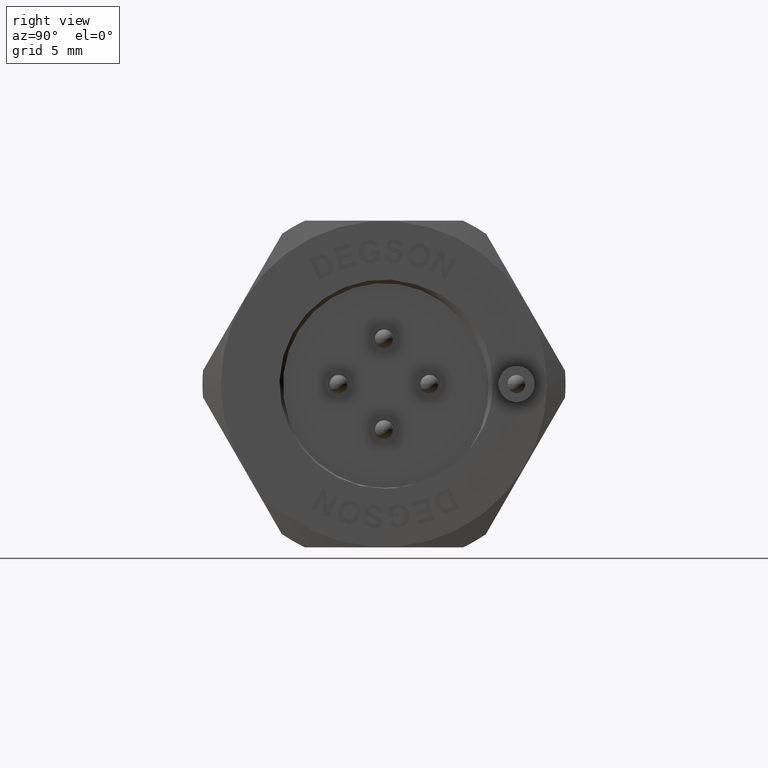
[diagram: clean part render]
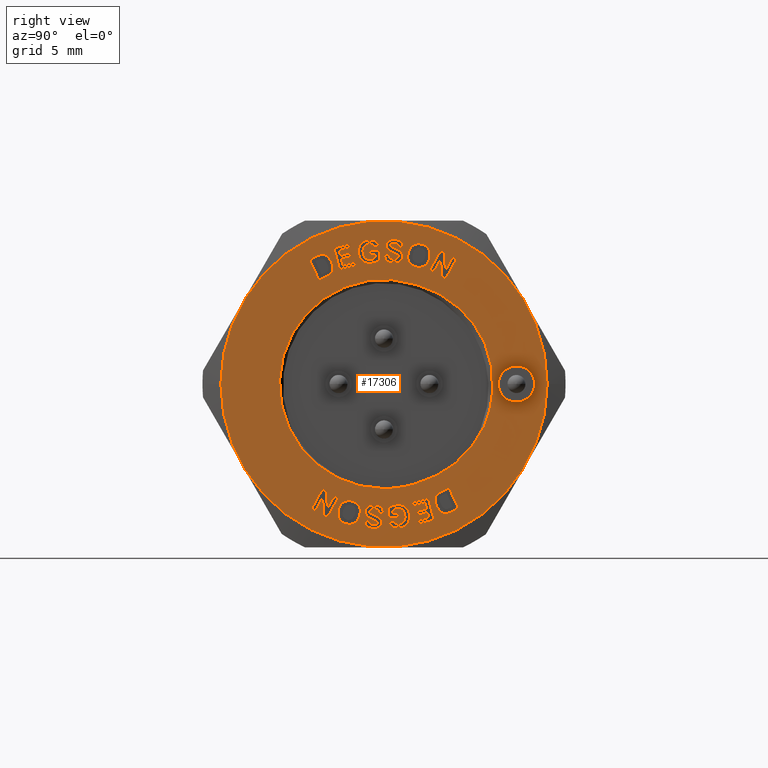
[diagram: same view with one face highlighted and labeled with its STEP entity id]
A machine part, right view. The second image highlights one B-rep face of the part: STEP entity #17306.
In plain terms, the highlighted planar face has unit normal (1, 0, 0).
Its self-contained STEP definition (entity closure, byte-faithful):
#4112=CARTESIAN_POINT('',(2.14E1,0.E0,0.E0));
#4113=DIRECTION('',(-1.E0,0.E0,0.E0));
#4114=DIRECTION('',(0.E0,-1.E0,0.E0));
#4115=AXIS2_PLACEMENT_3D('',#4112,#4113,#4114);
#4117=CARTESIAN_POINT('',(2.14E1,0.E0,0.E0));
#4118=DIRECTION('',(-1.E0,0.E0,0.E0));
#4119=DIRECTION('',(0.E0,1.E0,0.E0));
#4120=AXIS2_PLACEMENT_3D('',#4117,#4118,#4119);
#4122=CARTESIAN_POINT('',(2.14E1,-7.838041260616E-6,-1.721179755521E-5));
#4123=DIRECTION('',(1.E0,0.E0,0.E0));
#4124=DIRECTION('',(0.E0,3.026476789395E-1,9.531025036336E-1));
#4125=AXIS2_PLACEMENT_3D('',#4122,#4123,#4124);
#4127=CARTESIAN_POINT('',(2.14E1,-7.838041260616E-6,-1.721179755521E-5));
#4128=DIRECTION('',(1.E0,0.E0,0.E0));
#4129=DIRECTION('',(0.E0,0.E0,-1.E0));
#4130=AXIS2_PLACEMENT_3D('',#4127,#4128,#4129);
#4132=DIRECTION('',(0.E0,4.215915514527E-1,-9.067858422713E-1));
#4133=VECTOR('',#4132,1.250000000001E0);
#4134=CARTESIAN_POINT('',(2.14E1,-4.110142694949E0,6.856303081411E0));
#4135=LINE('',#4134,#4133);
#4136=DIRECTION('',(0.E0,9.067858422711E-1,4.215915514532E-1));
#4137=VECTOR('',#4136,4.749317839737E-1);
#4138=CARTESIAN_POINT('',(2.14E1,-3.583153255633E0,5.722820778571E0));
#4139=LINE('',#4138,#4137);
#4140=CARTESIAN_POINT('',(2.14E1,-3.152491837881E0,5.923048006211E0));
#4141=CARTESIAN_POINT('',(2.14E1,-3.068215199807E0,5.962230707287E0));
#4142=CARTESIAN_POINT('',(2.14E1,-3.004543225679E0,6.001236796120E0));
#4143=CARTESIAN_POINT('',(2.14E1,-2.961137928657E0,6.041280758123E0));
#4145=CARTESIAN_POINT('',(2.14E1,-2.961137928657E0,6.041280758123E0));
#4146=CARTESIAN_POINT('',(2.14E1,-2.903860924371E0,6.094122193170E0));
#4147=CARTESIAN_POINT('',(2.14E1,-2.864530964340E0,6.149079967290E0));
#4148=CARTESIAN_POINT('',(2.14E1,-2.842451943910E0,6.206490168669E0));
#4150=CARTESIAN_POINT('',(2.14E1,-2.842451943910E0,6.206490168669E0));
#4151=CARTESIAN_POINT('',(2.14E1,-2.813448324549E0,6.281905816459E0));
#4152=CARTESIAN_POINT('',(2.14E1,-2.804157748982E0,6.367091983290E0));
#4153=CARTESIAN_POINT('',(2.14E1,-2.814051035645E0,6.463118961838E0));
#4155=CARTESIAN_POINT('',(2.14E1,-2.814051035645E0,6.463118961838E0));
#4156=CARTESIAN_POINT('',(2.14E1,-2.822092715468E0,6.541173731925E0));
#4157=CARTESIAN_POINT('',(2.14E1,-2.847880371038E0,6.626976616310E0));
#4158=CARTESIAN_POINT('',(2.14E1,-2.891376762966E0,6.720531414205E0));
#4160=CARTESIAN_POINT('',(2.14E1,-2.891376762966E0,6.720531414205E0));
#4161=CARTESIAN_POINT('',(2.14E1,-2.940624747933E0,6.826457103120E0));
#4162=CARTESIAN_POINT('',(2.14E1,-2.994335175233E0,6.909621294442E0));
#4163=CARTESIAN_POINT('',(2.14E1,-3.052867548710E0,6.970797055107E0));
#4165=CARTESIAN_POINT('',(2.14E1,-3.052867548710E0,6.970797055107E0));
#4166=CARTESIAN_POINT('',(2.14E1,-3.111399922187E0,7.031972815773E0));
#4167=CARTESIAN_POINT('',(2.14E1,-3.176137845943E0,7.076158707908E0));
#4168=CARTESIAN_POINT('',(2.14E1,-3.246885667165E0,7.103925553059E0));
#4170=CARTESIAN_POINT('',(2.14E1,-3.246885667165E0,7.103925553059E0));
#4171=CARTESIAN_POINT('',(2.14E1,-3.317611221444E0,7.131683658963E0));
#4172=CARTESIAN_POINT('',(2.14E1,-3.390229774168E0,7.140235156292E0));
#4173=CARTESIAN_POINT('',(2.14E1,-3.465971613322E0,7.128797925493E0));
#4175=CARTESIAN_POINT('',(2.14E1,-3.465971613322E0,7.128797925493E0));
#4176=CARTESIAN_POINT('',(2.14E1,-3.522023683819E0,7.120333905155E0));
#4177=CARTESIAN_POINT('',(2.14E1,-3.597524136852E0,7.094634607044E0));
#4178=CARTESIAN_POINT('',(2.14E1,-3.691852168217E0,7.050778716012E0));
#4180=DIRECTION('',(0.E0,-9.067858422715E-1,-4.215915514522E-1));
#4181=VECTOR('',#4180,4.612892121076E-1);
#4182=CARTESIAN_POINT('',(2.14E1,-3.691852168217E0,7.050778716012E0));
#4183=LINE('',#4182,#4181);
#4184=DIRECTION('',(0.E0,9.678886937001E-1,2.513791491104E-1));
#4185=VECTOR('',#4184,9.507162868979E-1);
#4186=CARTESIAN_POINT('',(2.14E1,-2.446799288322E0,6.286803138071E0));
#4187=LINE('',#4186,#4185);
#4188=DIRECTION('',(0.E0,-2.513791491102E-1,9.678886937002E-1));
#4189=VECTOR('',#4188,2.106070891020E-1);
#4190=CARTESIAN_POINT('',(2.14E1,-1.526611743317E0,6.525793389317E0));
#4191=LINE('',#4190,#4189);
#4192=DIRECTION('',(0.E0,-9.678886937002E-1,-2.513791491102E-1));
#4193=VECTOR('',#4192,6.983287632465E-1);
#4194=CARTESIAN_POINT('',(2.14E1,-1.579553974172E0,6.729637609672E0));
#4195=LINE('',#4194,#4193);
#4196=DIRECTION('',(0.E0,-2.513791491114E-1,9.678886936999E-1));
#4197=VECTOR('',#4196,3.402114659552E-1);
#4198=CARTESIAN_POINT('',(2.14E1,-2.255458488604E0,6.554092319368E0));
#4199=LINE('',#4198,#4197);
#4200=DIRECTION('',(0.E0,9.678886937002E-1,2.513791491101E-1));
#4201=VECTOR('',#4200,6.275579333308E-1);
#4202=CARTESIAN_POINT('',(2.14E1,-2.340980557434E0,6.883379150733E0));
#4203=LINE('',#4202,#4201);
#4204=DIRECTION('',(0.E0,-2.513791491102E-1,9.678886937002E-1));
#4205=VECTOR('',#4204,2.106070891021E-1);
#4206=CARTESIAN_POINT('',(2.14E1,-1.733574329121E0,7.041134130031E0));
#4207=LINE('',#4206,#4205);
#4208=DIRECTION('',(0.E0,-9.678886937002E-1,-2.513791491101E-1));
#4209=VECTOR('',#4208,6.275579333310E-1);
#4210=CARTESIAN_POINT('',(2.14E1,-1.786516559976E0,7.244978350386E0));
#4211=LINE('',#4210,#4209);
#4212=DIRECTION('',(-1.282037781684E-14,-2.513791491096E-1,9.678886937003E-1));
#4213=VECTOR('',#4212,2.771145850424E-1);
#4214=CARTESIAN_POINT('',(2.14E1,-2.393922788289E0,7.087223371088E0));
#4215=LINE('',#4214,#4213);
#4216=DIRECTION('',(0.E0,9.678886937002E-1,2.513791491099E-1));
#4217=VECTOR('',#4216,6.744542717935E-1);
#4218=CARTESIAN_POINT('',(2.14E1,-2.463583616883E0,7.355439444810E0));
#4219=LINE('',#4218,#4217);
#4220=DIRECTION('',(0.E0,-2.513791491093E-1,9.678886937004E-1));
#4221=VECTOR('',#4220,2.114597707981E-1);
#4222=CARTESIAN_POINT('',(2.14E1,-1.810786952796E0,7.524983185767E0));
#4223=LINE('',#4222,#4221);
#4224=DIRECTION('',(0.E0,-9.678886937003E-1,-2.513791491096E-1));
#4225=VECTOR('',#4224,9.268417954448E-1);
#4226=CARTESIAN_POINT('',(2.14E1,-1.863943530050E0,7.729652707095E0));
#4227=LINE('',#4226,#4225);
#4228=DIRECTION('',(0.E0,2.513791491103E-1,-9.678886937002E-1));
#4229=VECTOR('',#4228,1.25E0);
#4230=CARTESIAN_POINT('',(2.14E1,-2.761023224710E0,7.496664005197E0));
#4231=LINE('',#4230,#4229);
#4232=DIRECTION('',(0.E0,9.975191578920E-1,7.039552285739E-2));
#4233=VECTOR('',#4232,2.890518307687E-1);
#4234=CARTESIAN_POINT('',(2.14E1,-7.753997605249E-1,7.122669432652E0));
#4235=LINE('',#4234,#4233);
#4236=DIRECTION('',(0.E0,7.039552285818E-2,-9.975191578920E-1));
#4237=VECTOR('',#4236,1.585947908461E-1);
#4238=CARTESIAN_POINT('',(2.14E1,-4.870650217094E-1,7.143017387412E0));
#4239=LINE('',#4238,#4237);
#4240=CARTESIAN_POINT('',(2.14E1,-4.759006584852E-1,6.984816045201E0));
#4241=CARTESIAN_POINT('',(2.14E1,-5.120745412282E-1,6.952345898187E0));
#4242=CARTESIAN_POINT('',(2.14E1,-5.562033034784E-1,6.923588270168E0));
#4243=CARTESIAN_POINT('',(2.14E1,-6.074964373452E-1,6.899453741963E0));
#4245=CARTESIAN_POINT('',(2.14E1,-6.074964373452E-1,6.899453741963E0));
#4246=CARTESIAN_POINT('',(2.14E1,-6.587895772958E-1,6.875319210896E0));
#4247=CARTESIAN_POINT('',(2.14E1,-7.108032934732E-1,6.861391205381E0));
#4248=CARTESIAN_POINT('',(2.14E1,-7.635369936957E-1,6.857669756655E0));
#4250=CARTESIAN_POINT('',(2.14E1,-7.635369936957E-1,6.857669756655E0));
#4251=CARTESIAN_POINT('',(2.14E1,-8.707057497593E-1,6.850106793520E0));
#4252=CARTESIAN_POINT('',(2.14E1,-9.591916916994E-1,6.880617872791E0));
#4253=CARTESIAN_POINT('',(2.14E1,-1.030127512722E0,6.949765169189E0));
#4255=CARTESIAN_POINT('',(2.14E1,-1.030127512722E0,6.949765169189E0));
#4256=CARTESIAN_POINT('',(2.14E1,-1.101470172793E0,7.019309046888E0));
#4257=CARTESIAN_POINT('',(2.14E1,-1.141653950608E0,7.128449557476E0));
#4258=CARTESIAN_POINT('',(2.14E1,-1.152098036437E0,7.276444419617E0));
#4260=CARTESIAN_POINT('',(2.14E1,-1.152098036437E0,7.276444419617E0));
#4261=CARTESIAN_POINT('',(2.14E1,-1.161761813340E0,7.413382142460E0));
#4262=CARTESIAN_POINT('',(2.14E1,-1.136763973655E0,7.519429524526E0));
#4263=CARTESIAN_POINT('',(2.14E1,-1.077044509524E0,7.593735978188E0));
#4265=CARTESIAN_POINT('',(2.14E1,-1.077044509524E0,7.593735978188E0));
#4266=CARTESIAN_POINT('',(2.14E1,-1.017325011161E0,7.668042474444E0));
#4267=CARTESIAN_POINT('',(2.14E1,-9.321799788795E-1,7.709097171963E0));
#4268=CARTESIAN_POINT('',(2.14E1,-8.216091061467E-1,7.716900224503E0));
#4270=CARTESIAN_POINT('',(2.14E1,-8.216091061467E-1,7.716900224503E0));
#4271=CARTESIAN_POINT('',(2.14E1,-7.493126405091E-1,7.722002229270E0));
#4272=CARTESIAN_POINT('',(2.14E1,-6.876633901380E-1,7.708402490343E0));
#4273=CARTESIAN_POINT('',(2.14E1,-6.366613497886E-1,7.676100933397E0));
#4275=CARTESIAN_POINT('',(2.14E1,-6.366613497886E-1,7.676100933397E0));
#4276=CARTESIAN_POINT('',(2.14E1,-5.856593094391E-1,7.643799376452E0));
#4277=CARTESIAN_POINT('',(2.14E1,-5.491267627301E-1,7.598509764897E0));
#4278=CARTESIAN_POINT('',(2.14E1,-5.269436649586E-1,7.538531040398E0));
#4280=DIRECTION('',(0.E0,9.675645963070E-1,2.526237359658E-1));
#4281=VECTOR('',#4280,2.550310753369E-1);
#4282=CARTESIAN_POINT('',(2.14E1,-5.269436649586E-1,7.538531040398E0));
#4283=LINE('',#4282,#4281);
#4284=CARTESIAN_POINT('',(2.14E1,-2.801846255046E-1,7.602957943437E0));
#4285=CARTESIAN_POINT('',(2.14E1,-3.137442370363E-1,7.715130220338E0));
#4286=CARTESIAN_POINT('',(2.14E1,-3.762428410938E-1,7.801326462340E0));
#4287=CARTESIAN_POINT('',(2.14E1,-4.675600852004E-1,7.859845483446E0));
#4289=CARTESIAN_POINT('',(2.14E1,-4.675600852004E-1,7.859845483446E0));
#4290=CARTESIAN_POINT('',(2.14E1,-5.588773293071E-1,7.918364504553E0));
#4291=CARTESIAN_POINT('',(2.14E1,-6.819957682399E-1,7.943012469228E0));
#4292=CARTESIAN_POINT('',(2.14E1,-8.367950495223E-1,7.932088191476E0));
#4294=CARTESIAN_POINT('',(2.14E1,-8.367950495223E-1,7.932088191476E0));
#4295=CARTESIAN_POINT('',(2.14E1,-9.558712139278E-1,7.923684915422E0));
#4296=CARTESIAN_POINT('',(2.14E1,-1.053884319947E0,7.895398499322E0));
#4297=CARTESIAN_POINT('',(2.14E1,-1.130838808739E0,7.848739868723E0));
#4299=CARTESIAN_POINT('',(2.14E1,-1.130838808739E0,7.848739868723E0));
#4300=CARTESIAN_POINT('',(2.14E1,-1.232580616584E0,7.787052324522E0));
#4301=CARTESIAN_POINT('',(2.14E1,-1.306219181928E0,7.704070574623E0));
#4302=CARTESIAN_POINT('',(2.14E1,-1.353386612271E0,7.599781504840E0));
#4304=CARTESIAN_POINT('',(2.14E1,-1.353386612271E0,7.599781504840E0));
#4305=CARTESIAN_POINT('',(2.14E1,-1.400863431553E0,7.494808363772E0));
#4306=CARTESIAN_POINT('',(2.14E1,-1.419917470296E0,7.377213505490E0));
#4307=CARTESIAN_POINT('',(2.14E1,-1.410793905046E0,7.247930693794E0));
#4309=CARTESIAN_POINT('',(2.14E1,-1.410793905046E0,7.247930693794E0));
#4310=CARTESIAN_POINT('',(2.14E1,-1.402330596150E0,7.128003851579E0));
#4311=CARTESIAN_POINT('',(2.14E1,-1.370712432266E0,7.019113662826E0));
#4312=CARTESIAN_POINT('',(2.14E1,-1.314512511397E0,6.920340047566E0));
#4314=CARTESIAN_POINT('',(2.14E1,-1.314512511397E0,6.920340047566E0));
#4315=CARTESIAN_POINT('',(2.14E1,-1.258494161186E0,6.821885550021E0));
#4316=CARTESIAN_POINT('',(2.14E1,-1.179825007776E0,6.748797444491E0));
#4317=CARTESIAN_POINT('',(2.14E1,-1.079021397160E0,6.701205238871E0));
#4319=CARTESIAN_POINT('',(2.14E1,-1.079021397160E0,6.701205238871E0));
#4320=CARTESIAN_POINT('',(2.14E1,-9.782177862866E-1,6.653613033129E0));
#4321=CARTESIAN_POINT('',(2.14E1,-8.631745751173E-1,6.634378713640E0));
#4322=CARTESIAN_POINT('',(2.14E1,-7.321907050863E-1,6.643622323594E0));
#4324=CARTESIAN_POINT('',(2.14E1,-7.321907050863E-1,6.643622323594E0));
#4325=CARTESIAN_POINT('',(2.14E1,-6.301251240263E-1,6.650825152620E0));
#4326=CARTESIAN_POINT('',(2.14E1,-5.302909091303E-1,6.677530472348E0));
#4327=CARTESIAN_POINT('',(2.14E1,-4.327972868660E-1,6.723247600808E0));
#4329=CARTESIAN_POINT('',(2.14E1,-4.327972868660E-1,6.723247600808E0));
#4330=CARTESIAN_POINT('',(2.14E1,-3.350245937838E-1,6.769095592355E0));
#4331=CARTESIAN_POINT('',(2.14E1,-2.616567262674E-1,6.819576595501E0));
#4332=CARTESIAN_POINT('',(2.14E1,-2.125241367180E-1,6.874330762836E0));
#4334=DIRECTION('',(0.E0,-7.039552285795E-2,9.975191578920E-1));
#4335=VECTOR('',#4334,4.979535937302E-1);
#4336=CARTESIAN_POINT('',(2.14E1,-2.125241367180E-1,6.874330762836E0));
#4337=LINE('',#4336,#4335);
#4338=DIRECTION('',(0.E0,-9.975191578920E-1,-7.039552285730E-2));
#4339=VECTOR('',#4338,5.439972877502E-1);
#4340=CARTESIAN_POINT('',(2.14E1,-2.475778403076E-1,7.371049012323E0));
#4341=LINE('',#4340,#4339);
#4342=DIRECTION('',(0.E0,7.039552285790E-2,-9.975191578920E-1));
#4343=VECTOR('',#4342,2.106070891019E-1);
#4344=CARTESIAN_POINT('',(2.14E1,-7.902255566798E-1,7.332754038819E0));
#4345=LINE('',#4344,#4343);
#4346=CARTESIAN_POINT('',(2.14E1,2.038915465590E-2,7.153925911480E0));
#4347=CARTESIAN_POINT('',(2.14E1,2.003871626517E-2,7.013154733427E0));
#4348=CARTESIAN_POINT('',(2.14E1,5.746735783292E-2,6.901397325264E0));
#4349=CARTESIAN_POINT('',(2.14E1,1.333159683972E-1,6.818365566679E0));
#4351=CARTESIAN_POINT('',(2.14E1,1.333159683972E-1,6.818365566679E0));
#4352=CARTESIAN_POINT('',(2.14E1,2.087298240272E-1,6.735809735952E0));
#4353=CARTESIAN_POINT('',(2.14E1,3.247579965926E-1,6.686012869715E0));
#4354=CARTESIAN_POINT('',(2.14E1,4.822531798455E-1,6.667369032663E0));
#4356=CARTESIAN_POINT('',(2.14E1,4.822531798455E-1,6.667369032663E0));
#4357=CARTESIAN_POINT('',(2.14E1,5.897902644892E-1,6.654639094885E0));
#4358=CARTESIAN_POINT('',(2.14E1,6.813499150028E-1,6.659255568108E0));
#4359=CARTESIAN_POINT('',(2.14E1,7.575247549540E-1,6.680807088235E0));
#4361=CARTESIAN_POINT('',(2.14E1,7.575247549540E-1,6.680807088235E0));
#4362=CARTESIAN_POINT('',(2.14E1,8.332605488934E-1,6.702234392689E0));
#4363=CARTESIAN_POINT('',(2.14E1,8.945584995502E-1,6.741343251882E0));
#4364=CARTESIAN_POINT('',(2.14E1,9.416703331670E-1,6.799374926424E0));
#4366=CARTESIAN_POINT('',(2.14E1,9.416703331670E-1,6.799374926424E0));
#4367=CARTESIAN_POINT('',(2.14E1,9.880407345054E-1,6.856493315421E0));
#4368=CARTESIAN_POINT('',(2.14E1,1.016281224580E0,6.920980766964E0));
#4369=CARTESIAN_POINT('',(2.14E1,1.024701021393E0,6.992107619143E0));
#4371=CARTESIAN_POINT('',(2.14E1,1.024701021393E0,6.992107619143E0));
#4372=CARTESIAN_POINT('',(2.14E1,1.033922701740E0,7.070008441389E0));
#4373=CARTESIAN_POINT('',(2.14E1,1.024806138954E0,7.138059499297E0));
#4374=CARTESIAN_POINT('',(2.14E1,9.980978316201E-1,7.195313826681E0));
#4376=CARTESIAN_POINT('',(2.14E1,9.980978316201E-1,7.195313826681E0));
#4377=CARTESIAN_POINT('',(2.14E1,9.713895242858E-1,7.252568154065E0));
#4378=CARTESIAN_POINT('',(2.14E1,9.306768739238E-1,7.300318317493E0));
#4379=CARTESIAN_POINT('',(2.14E1,8.758599093205E-1,7.337717408906E0));
#4381=CARTESIAN_POINT('',(2.14E1,8.758599093205E-1,7.337717408906E0));
#4382=CARTESIAN_POINT('',(2.14E1,8.210426979842E-1,7.375116668653E0));
#4383=CARTESIAN_POINT('',(2.14E1,7.348957674832E-1,7.416224545406E0));
#4384=CARTESIAN_POINT('',(2.14E1,6.163722273866E-1,7.459447884562E0));
#4386=CARTESIAN_POINT('',(2.14E1,6.163722273866E-1,7.459447884562E0));
#4387=CARTESIAN_POINT('',(2.14E1,4.978484308811E-1,7.502671317226E0));
#4388=CARTESIAN_POINT('',(2.14E1,4.240018469200E-1,7.538888722411E0));
#4389=CARTESIAN_POINT('',(2.14E1,3.953737568439E-1,7.569205256274E0));
#4391=CARTESIAN_POINT('',(2.14E1,3.953737568439E-1,7.569205256274E0));
#4392=CARTESIAN_POINT('',(2.14E1,3.728830871031E-1,7.593022393533E0));
#4393=CARTESIAN_POINT('',(2.14E1,3.640356042875E-1,7.619828117258E0));
#4394=CARTESIAN_POINT('',(2.14E1,3.675438573390E-1,7.649464342661E0));
#4396=CARTESIAN_POINT('',(2.14E1,3.675438573390E-1,7.649464342661E0));
#4397=CARTESIAN_POINT('',(2.14E1,3.713528117891E-1,7.681640765220E0));
#4398=CARTESIAN_POINT('',(2.14E1,3.870611600638E-1,7.705539638690E0));
#4399=CARTESIAN_POINT('',(2.14E1,4.163948706405E-1,7.721927670966E0));
#4401=CARTESIAN_POINT('',(2.14E1,4.163948706405E-1,7.721927670966E0));
#4402=CARTESIAN_POINT('',(2.14E1,4.606146001980E-1,7.746632160816E0));
#4403=CARTESIAN_POINT('',(2.14E1,5.199978296581E-1,7.755057601206E0));
#4404=CARTESIAN_POINT('',(2.14E1,5.928179986297E-1,7.746437354310E0));
#4406=CARTESIAN_POINT('',(2.14E1,5.928179986297E-1,7.746437354310E0));
#4407=CARTESIAN_POINT('',(2.14E1,6.630982664022E-1,7.738117773779E0));
#4408=CARTESIAN_POINT('',(2.14E1,7.138925613001E-1,7.717508500587E0));
#4409=CARTESIAN_POINT('',(2.14E1,7.461481367066E-1,7.685355924296E0));
#4411=CARTESIAN_POINT('',(2.14E1,7.461481367066E-1,7.685355924296E0));
#4412=CARTESIAN_POINT('',(2.14E1,7.784037121131E-1,7.653203348005E0));
#4413=CARTESIAN_POINT('',(2.14E1,7.958533481559E-1,7.604772528668E0));
#4414=CARTESIAN_POINT('',(2.14E1,7.993434900222E-1,7.539963341507E0));
#4416=DIRECTION('',(0.E0,9.972678292815E-1,-7.387067537303E-2));
#4417=VECTOR('',#4416,2.526305208121E-1);
#4418=CARTESIAN_POINT('',(2.14E1,7.993434900222E-1,7.539963341507E0));
#4419=LINE('',#4418,#4417);
#4420=CARTESIAN_POINT('',(2.14E1,1.051283781123E0,7.521301354315E0));
#4421=CARTESIAN_POINT('',(2.14E1,1.060481693571E0,7.635266734654E0));
#4422=CARTESIAN_POINT('',(2.14E1,1.029816370610E0,7.731627095308E0));
#4423=CARTESIAN_POINT('',(2.14E1,9.589500409220E-1,7.809318055089E0));
#4425=CARTESIAN_POINT('',(2.14E1,9.589500409220E-1,7.809318055089E0));
#4426=CARTESIAN_POINT('',(2.14E1,8.884591356290E-1,7.886597436032E0));
#4427=CARTESIAN_POINT('',(2.14E1,7.757176593531E-1,7.935146639310E0));
#4428=CARTESIAN_POINT('',(2.14E1,6.199159408712E-1,7.953590008763E0));
#4430=CARTESIAN_POINT('',(2.14E1,6.199159408712E-1,7.953590008763E0));
#4431=CARTESIAN_POINT('',(2.14E1,5.242334055800E-1,7.964916638314E0));
#4432=CARTESIAN_POINT('',(2.14E1,4.412416071712E-1,7.960144511730E0));
#4433=CARTESIAN_POINT('',(2.14E1,3.700938036518E-1,7.939373895722E0));
#4435=CARTESIAN_POINT('',(2.14E1,3.700938036518E-1,7.939373895722E0));
#4436=CARTESIAN_POINT('',(2.14E1,2.989460281071E-1,7.918603287881E0));
#4437=CARTESIAN_POINT('',(2.14E1,2.422823912090E-1,7.882380330627E0));
#4438=CARTESIAN_POINT('',(2.14E1,2.002037195201E-1,7.831551579375E0));
#4440=CARTESIAN_POINT('',(2.14E1,2.002037195201E-1,7.831551579375E0));
#4441=CARTESIAN_POINT('',(2.14E1,1.581250478312E-1,7.780722828123E0));
#4442=CARTESIAN_POINT('',(2.14E1,1.333268744363E-1,7.723555396131E0));
#4443=CARTESIAN_POINT('',(2.14E1,1.259094331351E-1,7.660896015784E0));
#4445=CARTESIAN_POINT('',(2.14E1,1.259094331351E-1,7.660896015784E0));
#4446=CARTESIAN_POINT('',(2.14E1,1.142821021856E-1,7.562673283337E0));
#4447=CARTESIAN_POINT('',(2.14E1,1.424623213604E-1,7.474334632362E0));
#4448=CARTESIAN_POINT('',(2.14E1,2.103406955422E-1,7.397301731730E0));
#4450=CARTESIAN_POINT('',(2.14E1,2.103406955422E-1,7.397301731730E0));
#4451=CARTESIAN_POINT('',(2.14E1,2.590289492766E-1,7.342047058101E0));
#4452=CARTESIAN_POINT('',(2.14E1,3.482067098345E-1,7.290277001758E0));
#4453=CARTESIAN_POINT('',(2.14E1,4.787931007900E-1,7.240954163376E0));
#4455=CARTESIAN_POINT('',(2.14E1,4.787931007900E-1,7.240954163376E0));
#4456=CARTESIAN_POINT('',(2.14E1,5.799731845258E-1,7.202738167964E0));
#4457=CARTESIAN_POINT('',(2.14E1,6.447615735531E-1,7.177037809586E0));
#4458=CARTESIAN_POINT('',(2.14E1,6.730686512139E-1,7.163114415791E0));
#4460=CARTESIAN_POINT('',(2.14E1,6.730686512139E-1,7.163114415791E0));
#4461=CARTESIAN_POINT('',(2.14E1,7.137279392233E-1,7.143115343998E0));
#4462=CARTESIAN_POINT('',(2.14E1,7.420057140086E-1,7.120878411717E0));
#4463=CARTESIAN_POINT('',(2.14E1,7.565350026922E-1,7.098551753497E0));
#4465=CARTESIAN_POINT('',(2.14E1,7.565350026922E-1,7.098551753497E0));
#4466=CARTESIAN_POINT('',(2.14E1,7.710642913758E-1,7.076225095277E0));
#4467=CARTESIAN_POINT('',(2.14E1,7.773715726559E-1,7.049720035955E0));
#4468=CARTESIAN_POINT('',(2.14E1,7.739635577831E-1,7.020930579933E0));
#4470=CARTESIAN_POINT('',(2.14E1,7.739635577831E-1,7.020930579933E0));
#4471=CARTESIAN_POINT('',(2.14E1,7.685508318856E-1,6.975206180246E0));
#4472=CARTESIAN_POINT('',(2.14E1,7.425706203746E-1,6.937068200911E0));
#4473=CARTESIAN_POINT('',(2.14E1,6.979173955016E-1,6.908009648987E0));
#4475=CARTESIAN_POINT('',(2.14E1,6.979173955016E-1,6.908009648987E0));
#4476=CARTESIAN_POINT('',(2.14E1,6.532639787352E-1,6.878950972187E0));
#4477=CARTESIAN_POINT('',(2.14E1,5.902933499449E-1,6.869232983728E0));
#4478=CARTESIAN_POINT('',(2.14E1,5.098522935478E-1,6.878755369853E0));
#4480=CARTESIAN_POINT('',(2.14E1,5.098522935478E-1,6.878755369853E0));
#4481=CARTESIAN_POINT('',(2.14E1,4.336451950344E-1,6.887776551946E0));
#4482=CARTESIAN_POINT('',(2.14E1,3.748844624612E-1,6.913621971078E0));
#4483=CARTESIAN_POINT('',(2.14E1,3.343800923814E-1,6.957665274030E0));
#4485=CARTESIAN_POINT('',(2.14E1,3.343800923814E-1,6.957665274030E0));
#4486=CARTESIAN_POINT('',(2.14E1,2.942505004154E-1,7.001301053893E0));
#4487=CARTESIAN_POINT('',(2.14E1,2.717310083466E-1,7.064928434644E0));
#4488=CARTESIAN_POINT('',(2.14E1,2.670591199416E-1,7.148767002433E0));
#4490=CARTESIAN_POINT('',(2.14E1,1.344259931490E0,7.251233405506E0));
#4491=CARTESIAN_POINT('',(2.14E1,1.283733809131E0,7.061112886735E0));
#4492=CARTESIAN_POINT('',(2.14E1,1.288398214493E0,6.895874644299E0));
#4493=CARTESIAN_POINT('',(2.14E1,1.358531732735E0,6.754311814187E0));
#4495=CARTESIAN_POINT('',(2.14E1,1.358531732735E0,6.754311814187E0));
#4496=CARTESIAN_POINT('',(2.14E1,1.428402420026E0,6.613279502067E0));
#4497=CARTESIAN_POINT('',(2.14E1,1.552702842483E0,6.514649085097E0));
#4498=CARTESIAN_POINT('',(2.14E1,1.729823801461E0,6.458261458422E0));
#4500=CARTESIAN_POINT('',(2.14E1,1.729823801461E0,6.458261458422E0));
#4501=CARTESIAN_POINT('',(2.14E1,1.904507078965E0,6.402649883740E0));
#4502=CARTESIAN_POINT('',(2.14E1,2.061325513728E0,6.411784256518E0));
#4503=CARTESIAN_POINT('',(2.14E1,2.200648162305E0,6.487559786557E0));
#4505=CARTESIAN_POINT('',(2.14E1,2.200648162305E0,6.487559786557E0));
#4506=CARTESIAN_POINT('',(2.14E1,2.339453447975E0,6.563053930555E0));
#4507=CARTESIAN_POINT('',(2.14E1,2.440116430429E0,6.696550123682E0));
#4508=CARTESIAN_POINT('',(2.14E1,2.501418536975E0,6.889108110941E0));
#4510=CARTESIAN_POINT('',(2.14E1,2.501418536975E0,6.889108110941E0));
#4511=CARTESIAN_POINT('',(2.14E1,2.562979297382E0,7.082478564032E0));
#4512=CARTESIAN_POINT('',(2.14E1,2.558537342565E0,7.251225286494E0));
#4513=CARTESIAN_POINT('',(2.14E1,2.487574953796E0,7.393723575769E0));
#4515=CARTESIAN_POINT('',(2.14E1,2.487574953796E0,7.393723575769E0));
#4516=CARTESIAN_POINT('',(2.14E1,2.416612773875E0,7.536221445659E0));
#4517=CARTESIAN_POINT('',(2.14E1,2.294195958838E0,7.635147089513E0));
#4518=CARTESIAN_POINT('',(2.14E1,2.118700499482E0,7.691017227651E0));
#4520=CARTESIAN_POINT('',(2.14E1,2.118700499482E0,7.691017227651E0));
#4521=CARTESIAN_POINT('',(2.14E1,2.021202327889E0,7.722056414277E0));
#4522=CARTESIAN_POINT('',(2.14E1,1.930718828071E0,7.732965921157E0));
#4523=CARTESIAN_POINT('',(2.14E1,1.846961397144E0,7.725546282531E0));
#4525=CARTESIAN_POINT('',(2.14E1,1.846961397144E0,7.725546282531E0));
#4526=CARTESIAN_POINT('',(2.14E1,1.783391875485E0,7.719914986620E0));
#4527=CARTESIAN_POINT('',(2.14E1,1.720824680254E0,7.700461244585E0));
#4528=CARTESIAN_POINT('',(2.14E1,1.658580377220E0,7.667264702563E0));
#4530=CARTESIAN_POINT('',(2.14E1,1.658580377220E0,7.667264702563E0));
#4531=CARTESIAN_POINT('',(2.14E1,1.595796565393E0,7.633780426156E0));
#4532=CARTESIAN_POINT('',(2.14E1,1.541904625906E0,7.590983916515E0));
#4533=CARTESIAN_POINT('',(2.14E1,1.496071477252E0,7.539290419706E0));
#4535=CARTESIAN_POINT('',(2.14E1,1.496071477252E0,7.539290419706E0));
#4536=CARTESIAN_POINT('',(2.14E1,1.433007216670E0,7.468162595220E0));
#4537=CARTESIAN_POINT('',(2.14E1,1.382800080098E0,7.372293086206E0));
#4538=CARTESIAN_POINT('',(2.14E1,1.344259931490E0,7.251233405506E0));
#4540=DIRECTION('',(0.E0,8.763947232283E-1,-4.815934894675E-1));
#4541=VECTOR('',#4540,2.344816923142E-1);
#4542=CARTESIAN_POINT('',(2.14E1,2.518267128602E0,6.261127321616E0));
#4543=LINE('',#4542,#4541);
#4544=DIRECTION('',(0.E0,4.815934894679E-1,8.763947232282E-1));
#4545=VECTOR('',#4544,8.151432126763E-1);
#4546=CARTESIAN_POINT('',(2.14E1,2.723765646440E0,6.148202465198E0));
#4547=LINE('',#4546,#4545);
#4548=DIRECTION('',(0.E0,5.120054808617E-2,-9.986883917798E-1));
#4549=VECTOR('',#4548,9.583297683541E-1);
#4550=CARTESIAN_POINT('',(2.14E1,3.116333310649E0,6.862589675463E0));
#4551=LINE('',#4550,#4549);
#4552=DIRECTION('',(0.E0,8.763947232283E-1,-4.815934894677E-1));
#4553=VECTOR('',#4552,2.532404661177E-1);
#4554=CARTESIAN_POINT('',(2.14E1,3.165400320036E0,5.905516860311E0));
#4555=LINE('',#4554,#4553);
#4556=DIRECTION('',(0.E0,4.815934894680E-1,8.763947232281E-1));
#4557=VECTOR('',#4556,1.25E0);
#4558=CARTESIAN_POINT('',(2.14E1,3.387338928249E0,5.783557900559E0));
#4559=LINE('',#4558,#4557);
#4560=DIRECTION('',(0.E0,-8.763947232283E-1,4.815934894675E-1));
#4561=VECTOR('',#4560,2.344816923144E-1);
#4562=CARTESIAN_POINT('',(2.14E1,3.989330790084E0,6.879051304594E0));
#4563=LINE('',#4562,#4561);
#4564=DIRECTION('',(0.E0,-4.815934894678E-1,-8.763947232282E-1));
#4565=VECTOR('',#4564,8.347544446584E-1);
#4566=CARTESIAN_POINT('',(2.14E1,3.783832272246E0,6.991976161012E0));
#4567=LINE('',#4566,#4565);
#4568=DIRECTION('',(0.E0,-4.733950608806E-2,9.988788571010E-1));
#4569=VECTOR('',#4568,9.790534498420E-1);
#4570=CARTESIAN_POINT('',(2.14E1,3.381819966394E0,6.260401770522E0));
#4571=LINE('',#4570,#4569);
#4572=DIRECTION('',(0.E0,-8.763947232279E-1,4.815934894684E-1));
#4573=VECTOR('',#4572,2.455663681033E-1);
#4574=CARTESIAN_POINT('',(2.14E1,3.335472059645E0,7.238357561541E0));
#4575=LINE('',#4574,#4573);
#4576=DIRECTION('',(0.E0,-4.815934894677E-1,-8.763947232283E-1));
#4577=VECTOR('',#4576,1.25E0);
#4578=CARTESIAN_POINT('',(2.14E1,3.120258990437E0,7.356620725652E0));
#4579=LINE('',#4578,#4577);
#4580=DIRECTION('',(0.E0,-4.215915514527E-1,9.067858422713E-1));
#4581=VECTOR('',#4580,1.250000000001E0);
#4582=CARTESIAN_POINT('',(2.14E1,4.110142694949E0,-6.856303081411E0));
#4583=LINE('',#4582,#4581);
#4584=DIRECTION('',(0.E0,-9.067858422711E-1,-4.215915514532E-1));
#4585=VECTOR('',#4584,4.749317839737E-1);
#4586=CARTESIAN_POINT('',(2.14E1,3.583153255633E0,-5.722820778571E0));
#4587=LINE('',#4586,#4585);
#4588=CARTESIAN_POINT('',(2.14E1,3.152491837881E0,-5.923048006211E0));
#4589=CARTESIAN_POINT('',(2.14E1,3.068215199807E0,-5.962230707287E0));
#4590=CARTESIAN_POINT('',(2.14E1,3.004543225679E0,-6.001236796120E0));
#4591=CARTESIAN_POINT('',(2.14E1,2.961137928657E0,-6.041280758123E0));
#4593=CARTESIAN_POINT('',(2.14E1,2.961137928657E0,-6.041280758123E0));
#4594=CARTESIAN_POINT('',(2.14E1,2.903860924371E0,-6.094122193170E0));
#4595=CARTESIAN_POINT('',(2.14E1,2.864530964340E0,-6.149079967290E0));
#4596=CARTESIAN_POINT('',(2.14E1,2.842451943910E0,-6.206490168669E0));
#4598=CARTESIAN_POINT('',(2.14E1,2.842451943910E0,-6.206490168669E0));
#4599=CARTESIAN_POINT('',(2.14E1,2.813448324549E0,-6.281905816459E0));
#4600=CARTESIAN_POINT('',(2.14E1,2.804157748982E0,-6.367091983290E0));
#4601=CARTESIAN_POINT('',(2.14E1,2.814051035645E0,-6.463118961838E0));
#4603=CARTESIAN_POINT('',(2.14E1,2.814051035645E0,-6.463118961838E0));
#4604=CARTESIAN_POINT('',(2.14E1,2.822092715468E0,-6.541173731925E0));
#4605=CARTESIAN_POINT('',(2.14E1,2.847880371038E0,-6.626976616310E0));
#4606=CARTESIAN_POINT('',(2.14E1,2.891376762966E0,-6.720531414205E0));
#4608=CARTESIAN_POINT('',(2.14E1,2.891376762966E0,-6.720531414205E0));
#4609=CARTESIAN_POINT('',(2.14E1,2.940624747933E0,-6.826457103120E0));
#4610=CARTESIAN_POINT('',(2.14E1,2.994335175233E0,-6.909621294442E0));
#4611=CARTESIAN_POINT('',(2.14E1,3.052867548710E0,-6.970797055107E0));
#4613=CARTESIAN_POINT('',(2.14E1,3.052867548710E0,-6.970797055107E0));
#4614=CARTESIAN_POINT('',(2.14E1,3.111399922187E0,-7.031972815773E0));
#4615=CARTESIAN_POINT('',(2.14E1,3.176137845943E0,-7.076158707908E0));
#4616=CARTESIAN_POINT('',(2.14E1,3.246885667165E0,-7.103925553059E0));
#4618=CARTESIAN_POINT('',(2.14E1,3.246885667165E0,-7.103925553059E0));
#4619=CARTESIAN_POINT('',(2.14E1,3.317611221444E0,-7.131683658963E0));
#4620=CARTESIAN_POINT('',(2.14E1,3.390229774168E0,-7.140235156292E0));
#4621=CARTESIAN_POINT('',(2.14E1,3.465971613322E0,-7.128797925493E0));
#4623=CARTESIAN_POINT('',(2.14E1,3.465971613322E0,-7.128797925493E0));
#4624=CARTESIAN_POINT('',(2.14E1,3.522023683819E0,-7.120333905155E0));
#4625=CARTESIAN_POINT('',(2.14E1,3.597524136852E0,-7.094634607044E0));
#4626=CARTESIAN_POINT('',(2.14E1,3.691852168217E0,-7.050778716012E0));
#4628=DIRECTION('',(0.E0,9.067858422715E-1,4.215915514522E-1));
#4629=VECTOR('',#4628,4.612892121076E-1);
#4630=CARTESIAN_POINT('',(2.14E1,3.691852168217E0,-7.050778716012E0));
#4631=LINE('',#4630,#4629);
#4632=DIRECTION('',(0.E0,-9.678886937001E-1,-2.513791491104E-1));
#4633=VECTOR('',#4632,9.507162868979E-1);
#4634=CARTESIAN_POINT('',(2.14E1,2.446799288322E0,-6.286803138071E0));
#4635=LINE('',#4634,#4633);
#4636=DIRECTION('',(0.E0,2.513791491102E-1,-9.678886937002E-1));
#4637=VECTOR('',#4636,2.106070891021E-1);
#4638=CARTESIAN_POINT('',(2.14E1,1.526611743317E0,-6.525793389317E0));
#4639=LINE('',#4638,#4637);
#4640=DIRECTION('',(0.E0,9.678886937002E-1,2.513791491102E-1));
#4641=VECTOR('',#4640,6.983287632465E-1);
#4642=CARTESIAN_POINT('',(2.14E1,1.579553974172E0,-6.729637609672E0));
#4643=LINE('',#4642,#4641);
#4644=DIRECTION('',(0.E0,2.513791491114E-1,-9.678886936999E-1));
#4645=VECTOR('',#4644,3.402114659552E-1);
#4646=CARTESIAN_POINT('',(2.14E1,2.255458488604E0,-6.554092319368E0));
#4647=LINE('',#4646,#4645);
#4648=DIRECTION('',(0.E0,-9.678886937002E-1,-2.513791491101E-1));
#4649=VECTOR('',#4648,6.275579333308E-1);
#4650=CARTESIAN_POINT('',(2.14E1,2.340980557434E0,-6.883379150733E0));
#4651=LINE('',#4650,#4649);
#4652=DIRECTION('',(0.E0,2.513791491102E-1,-9.678886937002E-1));
#4653=VECTOR('',#4652,2.106070891021E-1);
#4654=CARTESIAN_POINT('',(2.14E1,1.733574329121E0,-7.041134130031E0));
#4655=LINE('',#4654,#4653);
#4656=DIRECTION('',(0.E0,9.678886937002E-1,2.513791491101E-1));
#4657=VECTOR('',#4656,6.275579333310E-1);
#4658=CARTESIAN_POINT('',(2.14E1,1.786516559976E0,-7.244978350386E0));
#4659=LINE('',#4658,#4657);
#4660=DIRECTION('',(-1.282037781684E-14,2.513791491096E-1,-9.678886937003E-1));
#4661=VECTOR('',#4660,2.771145850424E-1);
#4662=CARTESIAN_POINT('',(2.14E1,2.393922788289E0,-7.087223371088E0));
#4663=LINE('',#4662,#4661);
#4664=DIRECTION('',(0.E0,-9.678886937002E-1,-2.513791491099E-1));
#4665=VECTOR('',#4664,6.744542717935E-1);
#4666=CARTESIAN_POINT('',(2.14E1,2.463583616883E0,-7.355439444810E0));
#4667=LINE('',#4666,#4665);
#4668=DIRECTION('',(0.E0,2.513791491093E-1,-9.678886937004E-1));
#4669=VECTOR('',#4668,2.114597707981E-1);
#4670=CARTESIAN_POINT('',(2.14E1,1.810786952796E0,-7.524983185767E0));
#4671=LINE('',#4670,#4669);
#4672=DIRECTION('',(0.E0,9.678886937003E-1,2.513791491095E-1));
#4673=VECTOR('',#4672,9.268417954448E-1);
#4674=CARTESIAN_POINT('',(2.14E1,1.863943530050E0,-7.729652707095E0));
#4675=LINE('',#4674,#4673);
#4676=DIRECTION('',(0.E0,-2.513791491103E-1,9.678886937002E-1));
#4677=VECTOR('',#4676,1.25E0);
#4678=CARTESIAN_POINT('',(2.14E1,2.761023224710E0,-7.496664005197E0));
#4679=LINE('',#4678,#4677);
#4680=DIRECTION('',(0.E0,-9.975191578920E-1,-7.039552285738E-2));
#4681=VECTOR('',#4680,2.890518307687E-1);
#4682=CARTESIAN_POINT('',(2.14E1,7.753997605249E-1,-7.122669432652E0));
#4683=LINE('',#4682,#4681);
#4684=DIRECTION('',(0.E0,-7.039552285816E-2,9.975191578920E-1));
#4685=VECTOR('',#4684,1.585947908461E-1);
#4686=CARTESIAN_POINT('',(2.14E1,4.870650217094E-1,-7.143017387412E0));
#4687=LINE('',#4686,#4685);
#4688=CARTESIAN_POINT('',(2.14E1,4.759006584852E-1,-6.984816045201E0));
#4689=CARTESIAN_POINT('',(2.14E1,5.120745412282E-1,-6.952345898187E0));
#4690=CARTESIAN_POINT('',(2.14E1,5.562033034784E-1,-6.923588270168E0));
#4691=CARTESIAN_POINT('',(2.14E1,6.074964373452E-1,-6.899453741963E0));
#4693=CARTESIAN_POINT('',(2.14E1,6.074964373452E-1,-6.899453741963E0));
#4694=CARTESIAN_POINT('',(2.14E1,6.587895772958E-1,-6.875319210896E0));
#4695=CARTESIAN_POINT('',(2.14E1,7.108032934732E-1,-6.861391205381E0));
#4696=CARTESIAN_POINT('',(2.14E1,7.635369936957E-1,-6.857669756655E0));
#4698=CARTESIAN_POINT('',(2.14E1,7.635369936957E-1,-6.857669756655E0));
#4699=CARTESIAN_POINT('',(2.14E1,8.707057497593E-1,-6.850106793520E0));
#4700=CARTESIAN_POINT('',(2.14E1,9.591916916993E-1,-6.880617872791E0));
#4701=CARTESIAN_POINT('',(2.14E1,1.030127512722E0,-6.949765169189E0));
#4703=CARTESIAN_POINT('',(2.14E1,1.030127512722E0,-6.949765169189E0));
#4704=CARTESIAN_POINT('',(2.14E1,1.101470172793E0,-7.019309046888E0));
#4705=CARTESIAN_POINT('',(2.14E1,1.141653950608E0,-7.128449557475E0));
#4706=CARTESIAN_POINT('',(2.14E1,1.152098036437E0,-7.276444419617E0));
#4708=CARTESIAN_POINT('',(2.14E1,1.152098036437E0,-7.276444419617E0));
#4709=CARTESIAN_POINT('',(2.14E1,1.161761813340E0,-7.413382142461E0));
#4710=CARTESIAN_POINT('',(2.14E1,1.136763973655E0,-7.519429524526E0));
#4711=CARTESIAN_POINT('',(2.14E1,1.077044509524E0,-7.593735978188E0));
#4713=CARTESIAN_POINT('',(2.14E1,1.077044509524E0,-7.593735978188E0));
#4714=CARTESIAN_POINT('',(2.14E1,1.017325011161E0,-7.668042474444E0));
#4715=CARTESIAN_POINT('',(2.14E1,9.321799788795E-1,-7.709097171963E0));
#4716=CARTESIAN_POINT('',(2.14E1,8.216091061467E-1,-7.716900224503E0));
#4718=CARTESIAN_POINT('',(2.14E1,8.216091061467E-1,-7.716900224503E0));
#4719=CARTESIAN_POINT('',(2.14E1,7.493126405091E-1,-7.722002229270E0));
#4720=CARTESIAN_POINT('',(2.14E1,6.876633901380E-1,-7.708402490343E0));
#4721=CARTESIAN_POINT('',(2.14E1,6.366613497886E-1,-7.676100933397E0));
#4723=CARTESIAN_POINT('',(2.14E1,6.366613497886E-1,-7.676100933397E0));
#4724=CARTESIAN_POINT('',(2.14E1,5.856593094391E-1,-7.643799376452E0));
#4725=CARTESIAN_POINT('',(2.14E1,5.491267627301E-1,-7.598509764897E0));
#4726=CARTESIAN_POINT('',(2.14E1,5.269436649586E-1,-7.538531040398E0));
#4728=DIRECTION('',(0.E0,-9.675645963070E-1,-2.526237359658E-1));
#4729=VECTOR('',#4728,2.550310753369E-1);
#4730=CARTESIAN_POINT('',(2.14E1,5.269436649586E-1,-7.538531040398E0));
#4731=LINE('',#4730,#4729);
#4732=CARTESIAN_POINT('',(2.14E1,2.801846255046E-1,-7.602957943437E0));
#4733=CARTESIAN_POINT('',(2.14E1,3.137442370363E-1,-7.715130220338E0));
#4734=CARTESIAN_POINT('',(2.14E1,3.762428410938E-1,-7.801326462340E0));
#4735=CARTESIAN_POINT('',(2.14E1,4.675600852004E-1,-7.859845483446E0));
#4737=CARTESIAN_POINT('',(2.14E1,4.675600852004E-1,-7.859845483446E0));
#4738=CARTESIAN_POINT('',(2.14E1,5.588773293071E-1,-7.918364504553E0));
#4739=CARTESIAN_POINT('',(2.14E1,6.819957682399E-1,-7.943012469228E0));
#4740=CARTESIAN_POINT('',(2.14E1,8.367950495223E-1,-7.932088191476E0));
#4742=CARTESIAN_POINT('',(2.14E1,8.367950495223E-1,-7.932088191476E0));
#4743=CARTESIAN_POINT('',(2.14E1,9.558712139278E-1,-7.923684915422E0));
#4744=CARTESIAN_POINT('',(2.14E1,1.053884319947E0,-7.895398499322E0));
#4745=CARTESIAN_POINT('',(2.14E1,1.130838808739E0,-7.848739868723E0));
#4747=CARTESIAN_POINT('',(2.14E1,1.130838808739E0,-7.848739868723E0));
#4748=CARTESIAN_POINT('',(2.14E1,1.232580616584E0,-7.787052324522E0));
#4749=CARTESIAN_POINT('',(2.14E1,1.306219181928E0,-7.704070574623E0));
#4750=CARTESIAN_POINT('',(2.14E1,1.353386612271E0,-7.599781504840E0));
#4752=CARTESIAN_POINT('',(2.14E1,1.353386612271E0,-7.599781504840E0));
#4753=CARTESIAN_POINT('',(2.14E1,1.400863431553E0,-7.494808363772E0));
#4754=CARTESIAN_POINT('',(2.14E1,1.419917470296E0,-7.377213505490E0));
#4755=CARTESIAN_POINT('',(2.14E1,1.410793905046E0,-7.247930693794E0));
#4757=CARTESIAN_POINT('',(2.14E1,1.410793905046E0,-7.247930693794E0));
#4758=CARTESIAN_POINT('',(2.14E1,1.402330596150E0,-7.128003851579E0));
#4759=CARTESIAN_POINT('',(2.14E1,1.370712432266E0,-7.019113662826E0));
#4760=CARTESIAN_POINT('',(2.14E1,1.314512511397E0,-6.920340047566E0));
#4762=CARTESIAN_POINT('',(2.14E1,1.314512511397E0,-6.920340047566E0));
#4763=CARTESIAN_POINT('',(2.14E1,1.258494161186E0,-6.821885550021E0));
#4764=CARTESIAN_POINT('',(2.14E1,1.179825007776E0,-6.748797444491E0));
#4765=CARTESIAN_POINT('',(2.14E1,1.079021397160E0,-6.701205238871E0));
#4767=CARTESIAN_POINT('',(2.14E1,1.079021397160E0,-6.701205238871E0));
#4768=CARTESIAN_POINT('',(2.14E1,9.782177862866E-1,-6.653613033129E0));
#4769=CARTESIAN_POINT('',(2.14E1,8.631745751173E-1,-6.634378713640E0));
#4770=CARTESIAN_POINT('',(2.14E1,7.321907050863E-1,-6.643622323594E0));
#4772=CARTESIAN_POINT('',(2.14E1,7.321907050863E-1,-6.643622323594E0));
#4773=CARTESIAN_POINT('',(2.14E1,6.301251240263E-1,-6.650825152620E0));
#4774=CARTESIAN_POINT('',(2.14E1,5.302909091303E-1,-6.677530472348E0));
#4775=CARTESIAN_POINT('',(2.14E1,4.327972868660E-1,-6.723247600808E0));
#4777=CARTESIAN_POINT('',(2.14E1,4.327972868660E-1,-6.723247600808E0));
#4778=CARTESIAN_POINT('',(2.14E1,3.350245937838E-1,-6.769095592355E0));
#4779=CARTESIAN_POINT('',(2.14E1,2.616567262674E-1,-6.819576595501E0));
#4780=CARTESIAN_POINT('',(2.14E1,2.125241367180E-1,-6.874330762836E0));
#4782=DIRECTION('',(0.E0,7.039552285795E-2,-9.975191578920E-1));
#4783=VECTOR('',#4782,4.979535937302E-1);
#4784=CARTESIAN_POINT('',(2.14E1,2.125241367180E-1,-6.874330762836E0));
#4785=LINE('',#4784,#4783);
#4786=DIRECTION('',(0.E0,9.975191578920E-1,7.039552285730E-2));
#4787=VECTOR('',#4786,5.439972877502E-1);
#4788=CARTESIAN_POINT('',(2.14E1,2.475778403076E-1,-7.371049012323E0));
#4789=LINE('',#4788,#4787);
#4790=DIRECTION('',(0.E0,-7.039552285790E-2,9.975191578920E-1));
#4791=VECTOR('',#4790,2.106070891019E-1);
#4792=CARTESIAN_POINT('',(2.14E1,7.902255566798E-1,-7.332754038819E0));
#4793=LINE('',#4792,#4791);
#4794=CARTESIAN_POINT('',(2.14E1,-2.038915465591E-2,-7.153925911480E0));
#4795=CARTESIAN_POINT('',(2.14E1,-2.003871626518E-2,-7.013154733427E0));
#4796=CARTESIAN_POINT('',(2.14E1,-5.746735783292E-2,-6.901397325264E0));
#4797=CARTESIAN_POINT('',(2.14E1,-1.333159683972E-1,-6.818365566679E0));
#4799=CARTESIAN_POINT('',(2.14E1,-1.333159683972E-1,-6.818365566679E0));
#4800=CARTESIAN_POINT('',(2.14E1,-2.087298240272E-1,-6.735809735952E0));
#4801=CARTESIAN_POINT('',(2.14E1,-3.247579965926E-1,-6.686012869715E0));
#4802=CARTESIAN_POINT('',(2.14E1,-4.822531798455E-1,-6.667369032663E0));
#4804=CARTESIAN_POINT('',(2.14E1,-4.822531798455E-1,-6.667369032663E0));
#4805=CARTESIAN_POINT('',(2.14E1,-5.897902644892E-1,-6.654639094885E0));
#4806=CARTESIAN_POINT('',(2.14E1,-6.813499150027E-1,-6.659255568108E0));
#4807=CARTESIAN_POINT('',(2.14E1,-7.575247549540E-1,-6.680807088235E0));
#4809=CARTESIAN_POINT('',(2.14E1,-7.575247549540E-1,-6.680807088235E0));
#4810=CARTESIAN_POINT('',(2.14E1,-8.332605488934E-1,-6.702234392689E0));
#4811=CARTESIAN_POINT('',(2.14E1,-8.945584995502E-1,-6.741343251882E0));
#4812=CARTESIAN_POINT('',(2.14E1,-9.416703331670E-1,-6.799374926424E0));
#4814=CARTESIAN_POINT('',(2.14E1,-9.416703331670E-1,-6.799374926424E0));
#4815=CARTESIAN_POINT('',(2.14E1,-9.880407345054E-1,-6.856493315421E0));
#4816=CARTESIAN_POINT('',(2.14E1,-1.016281224580E0,-6.920980766964E0));
#4817=CARTESIAN_POINT('',(2.14E1,-1.024701021393E0,-6.992107619143E0));
#4819=CARTESIAN_POINT('',(2.14E1,-1.024701021393E0,-6.992107619143E0));
#4820=CARTESIAN_POINT('',(2.14E1,-1.033922701740E0,-7.070008441389E0));
#4821=CARTESIAN_POINT('',(2.14E1,-1.024806138954E0,-7.138059499297E0));
#4822=CARTESIAN_POINT('',(2.14E1,-9.980978316201E-1,-7.195313826681E0));
#4824=CARTESIAN_POINT('',(2.14E1,-9.980978316201E-1,-7.195313826681E0));
#4825=CARTESIAN_POINT('',(2.14E1,-9.713895242858E-1,-7.252568154065E0));
#4826=CARTESIAN_POINT('',(2.14E1,-9.306768739238E-1,-7.300318317493E0));
#4827=CARTESIAN_POINT('',(2.14E1,-8.758599093205E-1,-7.337717408906E0));
#4829=CARTESIAN_POINT('',(2.14E1,-8.758599093205E-1,-7.337717408906E0));
#4830=CARTESIAN_POINT('',(2.14E1,-8.210426979842E-1,-7.375116668653E0));
#4831=CARTESIAN_POINT('',(2.14E1,-7.348957674832E-1,-7.416224545406E0));
#4832=CARTESIAN_POINT('',(2.14E1,-6.163722273866E-1,-7.459447884562E0));
#4834=CARTESIAN_POINT('',(2.14E1,-6.163722273866E-1,-7.459447884562E0));
#4835=CARTESIAN_POINT('',(2.14E1,-4.978484308812E-1,-7.502671317226E0));
#4836=CARTESIAN_POINT('',(2.14E1,-4.240018469201E-1,-7.538888722411E0));
#4837=CARTESIAN_POINT('',(2.14E1,-3.953737568439E-1,-7.569205256274E0));
#4839=CARTESIAN_POINT('',(2.14E1,-3.953737568439E-1,-7.569205256274E0));
#4840=CARTESIAN_POINT('',(2.14E1,-3.728830871031E-1,-7.593022393533E0));
#4841=CARTESIAN_POINT('',(2.14E1,-3.640356042875E-1,-7.619828117258E0));
#4842=CARTESIAN_POINT('',(2.14E1,-3.675438573390E-1,-7.649464342661E0));
#4844=CARTESIAN_POINT('',(2.14E1,-3.675438573390E-1,-7.649464342661E0));
#4845=CARTESIAN_POINT('',(2.14E1,-3.713528117891E-1,-7.681640765220E0));
#4846=CARTESIAN_POINT('',(2.14E1,-3.870611600638E-1,-7.705539638690E0));
#4847=CARTESIAN_POINT('',(2.14E1,-4.163948706405E-1,-7.721927670966E0));
#4849=CARTESIAN_POINT('',(2.14E1,-4.163948706405E-1,-7.721927670966E0));
#4850=CARTESIAN_POINT('',(2.14E1,-4.606146001980E-1,-7.746632160816E0));
#4851=CARTESIAN_POINT('',(2.14E1,-5.199978296581E-1,-7.755057601206E0));
#4852=CARTESIAN_POINT('',(2.14E1,-5.928179986297E-1,-7.746437354310E0));
#4854=CARTESIAN_POINT('',(2.14E1,-5.928179986297E-1,-7.746437354310E0));
#4855=CARTESIAN_POINT('',(2.14E1,-6.630982664022E-1,-7.738117773779E0));
#4856=CARTESIAN_POINT('',(2.14E1,-7.138925613001E-1,-7.717508500587E0));
#4857=CARTESIAN_POINT('',(2.14E1,-7.461481367066E-1,-7.685355924296E0));
#4859=CARTESIAN_POINT('',(2.14E1,-7.461481367066E-1,-7.685355924296E0));
#4860=CARTESIAN_POINT('',(2.14E1,-7.784037121131E-1,-7.653203348005E0));
#4861=CARTESIAN_POINT('',(2.14E1,-7.958533481559E-1,-7.604772528668E0));
#4862=CARTESIAN_POINT('',(2.14E1,-7.993434900222E-1,-7.539963341507E0));
#4864=DIRECTION('',(0.E0,-9.972678292815E-1,7.387067537302E-2));
#4865=VECTOR('',#4864,2.526305208121E-1);
#4866=CARTESIAN_POINT('',(2.14E1,-7.993434900222E-1,-7.539963341507E0));
#4867=LINE('',#4866,#4865);
#4868=CARTESIAN_POINT('',(2.14E1,-1.051283781123E0,-7.521301354315E0));
#4869=CARTESIAN_POINT('',(2.14E1,-1.060481693571E0,-7.635266734654E0));
#4870=CARTESIAN_POINT('',(2.14E1,-1.029816370610E0,-7.731627095308E0));
#4871=CARTESIAN_POINT('',(2.14E1,-9.589500409221E-1,-7.809318055089E0));
#4873=CARTESIAN_POINT('',(2.14E1,-9.589500409221E-1,-7.809318055089E0));
#4874=CARTESIAN_POINT('',(2.14E1,-8.884591356291E-1,-7.886597436032E0));
#4875=CARTESIAN_POINT('',(2.14E1,-7.757176593531E-1,-7.935146639310E0));
#4876=CARTESIAN_POINT('',(2.14E1,-6.199159408712E-1,-7.953590008763E0));
#4878=CARTESIAN_POINT('',(2.14E1,-6.199159408712E-1,-7.953590008763E0));
#4879=CARTESIAN_POINT('',(2.14E1,-5.242334055800E-1,-7.964916638314E0));
#4880=CARTESIAN_POINT('',(2.14E1,-4.412416071713E-1,-7.960144511730E0));
#4881=CARTESIAN_POINT('',(2.14E1,-3.700938036519E-1,-7.939373895722E0));
#4883=CARTESIAN_POINT('',(2.14E1,-3.700938036519E-1,-7.939373895722E0));
#4884=CARTESIAN_POINT('',(2.14E1,-2.989460281072E-1,-7.918603287881E0));
#4885=CARTESIAN_POINT('',(2.14E1,-2.422823912090E-1,-7.882380330627E0));
#4886=CARTESIAN_POINT('',(2.14E1,-2.002037195201E-1,-7.831551579375E0));
#4888=CARTESIAN_POINT('',(2.14E1,-2.002037195201E-1,-7.831551579375E0));
#4889=CARTESIAN_POINT('',(2.14E1,-1.581250478312E-1,-7.780722828123E0));
#4890=CARTESIAN_POINT('',(2.14E1,-1.333268744363E-1,-7.723555396131E0));
#4891=CARTESIAN_POINT('',(2.14E1,-1.259094331351E-1,-7.660896015784E0));
#4893=CARTESIAN_POINT('',(2.14E1,-1.259094331351E-1,-7.660896015784E0));
#4894=CARTESIAN_POINT('',(2.14E1,-1.142821021856E-1,-7.562673283337E0));
#4895=CARTESIAN_POINT('',(2.14E1,-1.424623213604E-1,-7.474334632362E0));
#4896=CARTESIAN_POINT('',(2.14E1,-2.103406955422E-1,-7.397301731730E0));
#4898=CARTESIAN_POINT('',(2.14E1,-2.103406955422E-1,-7.397301731730E0));
#4899=CARTESIAN_POINT('',(2.14E1,-2.590289492766E-1,-7.342047058101E0));
#4900=CARTESIAN_POINT('',(2.14E1,-3.482067098345E-1,-7.290277001758E0));
#4901=CARTESIAN_POINT('',(2.14E1,-4.787931007901E-1,-7.240954163376E0));
#4903=CARTESIAN_POINT('',(2.14E1,-4.787931007901E-1,-7.240954163376E0));
#4904=CARTESIAN_POINT('',(2.14E1,-5.799731845258E-1,-7.202738167964E0));
#4905=CARTESIAN_POINT('',(2.14E1,-6.447615735531E-1,-7.177037809586E0));
#4906=CARTESIAN_POINT('',(2.14E1,-6.730686512139E-1,-7.163114415791E0));
#4908=CARTESIAN_POINT('',(2.14E1,-6.730686512139E-1,-7.163114415791E0));
#4909=CARTESIAN_POINT('',(2.14E1,-7.137279392233E-1,-7.143115343998E0));
#4910=CARTESIAN_POINT('',(2.14E1,-7.420057140086E-1,-7.120878411717E0));
#4911=CARTESIAN_POINT('',(2.14E1,-7.565350026922E-1,-7.098551753497E0));
#4913=CARTESIAN_POINT('',(2.14E1,-7.565350026922E-1,-7.098551753497E0));
#4914=CARTESIAN_POINT('',(2.14E1,-7.710642913759E-1,-7.076225095277E0));
#4915=CARTESIAN_POINT('',(2.14E1,-7.773715726559E-1,-7.049720035955E0));
#4916=CARTESIAN_POINT('',(2.14E1,-7.739635577831E-1,-7.020930579933E0));
#4918=CARTESIAN_POINT('',(2.14E1,-7.739635577831E-1,-7.020930579933E0));
#4919=CARTESIAN_POINT('',(2.14E1,-7.685508318857E-1,-6.975206180246E0));
#4920=CARTESIAN_POINT('',(2.14E1,-7.425706203746E-1,-6.937068200911E0));
#4921=CARTESIAN_POINT('',(2.14E1,-6.979173955016E-1,-6.908009648987E0));
#4923=CARTESIAN_POINT('',(2.14E1,-6.979173955016E-1,-6.908009648987E0));
#4924=CARTESIAN_POINT('',(2.14E1,-6.532639787352E-1,-6.878950972187E0));
#4925=CARTESIAN_POINT('',(2.14E1,-5.902933499449E-1,-6.869232983728E0));
#4926=CARTESIAN_POINT('',(2.14E1,-5.098522935478E-1,-6.878755369853E0));
#4928=CARTESIAN_POINT('',(2.14E1,-5.098522935478E-1,-6.878755369853E0));
#4929=CARTESIAN_POINT('',(2.14E1,-4.336451950344E-1,-6.887776551946E0));
#4930=CARTESIAN_POINT('',(2.14E1,-3.748844624612E-1,-6.913621971078E0));
#4931=CARTESIAN_POINT('',(2.14E1,-3.343800923814E-1,-6.957665274030E0));
#4933=CARTESIAN_POINT('',(2.14E1,-3.343800923814E-1,-6.957665274030E0));
#4934=CARTESIAN_POINT('',(2.14E1,-2.942505004154E-1,-7.001301053893E0));
#4935=CARTESIAN_POINT('',(2.14E1,-2.717310083466E-1,-7.064928434644E0));
#4936=CARTESIAN_POINT('',(2.14E1,-2.670591199416E-1,-7.148767002433E0));
#4938=CARTESIAN_POINT('',(2.14E1,-1.344259931490E0,-7.251233405506E0));
#4939=CARTESIAN_POINT('',(2.14E1,-1.283733809131E0,-7.061112886735E0));
#4940=CARTESIAN_POINT('',(2.14E1,-1.288398214493E0,-6.895874644299E0));
#4941=CARTESIAN_POINT('',(2.14E1,-1.358531732735E0,-6.754311814187E0));
#4943=CARTESIAN_POINT('',(2.14E1,-1.358531732735E0,-6.754311814187E0));
#4944=CARTESIAN_POINT('',(2.14E1,-1.428402420026E0,-6.613279502067E0));
#4945=CARTESIAN_POINT('',(2.14E1,-1.552702842483E0,-6.514649085097E0));
#4946=CARTESIAN_POINT('',(2.14E1,-1.729823801461E0,-6.458261458422E0));
#4948=CARTESIAN_POINT('',(2.14E1,-1.729823801461E0,-6.458261458422E0));
#4949=CARTESIAN_POINT('',(2.14E1,-1.904507078965E0,-6.402649883740E0));
#4950=CARTESIAN_POINT('',(2.14E1,-2.061325513728E0,-6.411784256518E0));
#4951=CARTESIAN_POINT('',(2.14E1,-2.200648162305E0,-6.487559786557E0));
#4953=CARTESIAN_POINT('',(2.14E1,-2.200648162305E0,-6.487559786557E0));
#4954=CARTESIAN_POINT('',(2.14E1,-2.339453447975E0,-6.563053930555E0));
#4955=CARTESIAN_POINT('',(2.14E1,-2.440116430429E0,-6.696550123682E0));
#4956=CARTESIAN_POINT('',(2.14E1,-2.501418536975E0,-6.889108110941E0));
#4958=CARTESIAN_POINT('',(2.14E1,-2.501418536975E0,-6.889108110941E0));
#4959=CARTESIAN_POINT('',(2.14E1,-2.562979297383E0,-7.082478564032E0));
#4960=CARTESIAN_POINT('',(2.14E1,-2.558537342565E0,-7.251225286494E0));
#4961=CARTESIAN_POINT('',(2.14E1,-2.487574953796E0,-7.393723575769E0));
#4963=CARTESIAN_POINT('',(2.14E1,-2.487574953796E0,-7.393723575769E0));
#4964=CARTESIAN_POINT('',(2.14E1,-2.416612773875E0,-7.536221445659E0));
#4965=CARTESIAN_POINT('',(2.14E1,-2.294195958838E0,-7.635147089513E0));
#4966=CARTESIAN_POINT('',(2.14E1,-2.118700499482E0,-7.691017227651E0));
#4968=CARTESIAN_POINT('',(2.14E1,-2.118700499482E0,-7.691017227651E0));
#4969=CARTESIAN_POINT('',(2.14E1,-2.021202327889E0,-7.722056414277E0));
#4970=CARTESIAN_POINT('',(2.14E1,-1.930718828071E0,-7.732965921157E0));
#4971=CARTESIAN_POINT('',(2.14E1,-1.846961397144E0,-7.725546282531E0));
#4973=CARTESIAN_POINT('',(2.14E1,-1.846961397144E0,-7.725546282531E0));
#4974=CARTESIAN_POINT('',(2.14E1,-1.783391875485E0,-7.719914986620E0));
#4975=CARTESIAN_POINT('',(2.14E1,-1.720824680254E0,-7.700461244585E0));
#4976=CARTESIAN_POINT('',(2.14E1,-1.658580377220E0,-7.667264702563E0));
#4978=CARTESIAN_POINT('',(2.14E1,-1.658580377220E0,-7.667264702563E0));
#4979=CARTESIAN_POINT('',(2.14E1,-1.595796565393E0,-7.633780426156E0));
#4980=CARTESIAN_POINT('',(2.14E1,-1.541904625906E0,-7.590983916515E0));
#4981=CARTESIAN_POINT('',(2.14E1,-1.496071477252E0,-7.539290419706E0));
#4983=CARTESIAN_POINT('',(2.14E1,-1.496071477252E0,-7.539290419706E0));
#4984=CARTESIAN_POINT('',(2.14E1,-1.433007216669E0,-7.468162595219E0));
#4985=CARTESIAN_POINT('',(2.14E1,-1.382800080098E0,-7.372293086205E0));
#4986=CARTESIAN_POINT('',(2.14E1,-1.344259931490E0,-7.251233405506E0));
#4988=DIRECTION('',(0.E0,-8.763947232283E-1,4.815934894675E-1));
#4989=VECTOR('',#4988,2.344816923140E-1);
#4990=CARTESIAN_POINT('',(2.14E1,-2.518267128602E0,-6.261127321616E0));
#4991=LINE('',#4990,#4989);
#4992=DIRECTION('',(0.E0,-4.815934894679E-1,-8.763947232282E-1));
#4993=VECTOR('',#4992,8.151432126764E-1);
#4994=CARTESIAN_POINT('',(2.14E1,-2.723765646440E0,-6.148202465198E0));
#4995=LINE('',#4994,#4993);
#4996=DIRECTION('',(0.E0,-5.120054808617E-2,9.986883917798E-1));
#4997=VECTOR('',#4996,9.583297683541E-1);
#4998=CARTESIAN_POINT('',(2.14E1,-3.116333310649E0,-6.862589675463E0));
#4999=LINE('',#4998,#4997);
#5000=DIRECTION('',(0.E0,-8.763947232283E-1,4.815934894677E-1));
#5001=VECTOR('',#5000,2.532404661177E-1);
#5002=CARTESIAN_POINT('',(2.14E1,-3.165400320036E0,-5.905516860311E0));
#5003=LINE('',#5002,#5001);
#5004=DIRECTION('',(0.E0,-4.815934894680E-1,-8.763947232281E-1));
#5005=VECTOR('',#5004,1.25E0);
#5006=CARTESIAN_POINT('',(2.14E1,-3.387338928249E0,-5.783557900559E0));
#5007=LINE('',#5006,#5005);
#5008=DIRECTION('',(0.E0,8.763947232283E-1,-4.815934894675E-1));
#5009=VECTOR('',#5008,2.344816923144E-1);
#5010=CARTESIAN_POINT('',(2.14E1,-3.989330790084E0,-6.879051304594E0));
#5011=LINE('',#5010,#5009);
#5012=DIRECTION('',(0.E0,4.815934894678E-1,8.763947232282E-1));
#5013=VECTOR('',#5012,8.347544446584E-1);
#5014=CARTESIAN_POINT('',(2.14E1,-3.783832272246E0,-6.991976161012E0));
#5015=LINE('',#5014,#5013);
#5016=DIRECTION('',(0.E0,4.733950608806E-2,-9.988788571010E-1));
#5017=VECTOR('',#5016,9.790534498420E-1);
#5018=CARTESIAN_POINT('',(2.14E1,-3.381819966394E0,-6.260401770522E0));
#5019=LINE('',#5018,#5017);
#5020=DIRECTION('',(0.E0,8.763947232279E-1,-4.815934894684E-1));
#5021=VECTOR('',#5020,2.455663681033E-1);
#5022=CARTESIAN_POINT('',(2.14E1,-3.335472059645E0,-7.238357561541E0));
#5023=LINE('',#5022,#5021);
#5024=DIRECTION('',(0.E0,4.815934894676E-1,8.763947232283E-1));
#5025=VECTOR('',#5024,1.25E0);
#5026=CARTESIAN_POINT('',(2.14E1,-3.120258990437E0,-7.356620725652E0));
#5027=LINE('',#5026,#5025);
#5028=CARTESIAN_POINT('',(2.14E1,7.3E0,0.E0));
#5029=DIRECTION('',(1.E0,0.E0,0.E0));
#5030=DIRECTION('',(0.E0,-1.E0,0.E0));
#5031=AXIS2_PLACEMENT_3D('',#5028,#5029,#5030);
#5033=CARTESIAN_POINT('',(2.14E1,7.3E0,0.E0));
#5034=DIRECTION('',(1.E0,0.E0,0.E0));
#5035=DIRECTION('',(0.E0,1.E0,0.E0));
#5036=AXIS2_PLACEMENT_3D('',#5033,#5034,#5035);
#5080=CARTESIAN_POINT('',(2.139985258761E1,5.543181163091E0,-2.296055443278E0));
#5081=CARTESIAN_POINT('',(2.139985258761E1,5.414039417135E0,-2.571855011311E0));
#5082=CARTESIAN_POINT('',(2.140006872652E1,5.120063858246E0,-3.090472361823E0));
#5083=CARTESIAN_POINT('',(2.139998057578E1,4.574608484086E0,-3.787411233894E0));
#5084=CARTESIAN_POINT('',(2.140000897037E1,3.959635403482E0,-4.369634725016E0));
#5085=CARTESIAN_POINT('',(2.139998354274E1,3.302225662932E0,-4.839724432984E0));
#5086=CARTESIAN_POINT('',(2.140005685867E1,2.568026677360E0,-5.224479357553E0));
#5087=CARTESIAN_POINT('',(2.139987830127E1,2.027416050968E0,-5.414668547575E0));
#5088=CARTESIAN_POINT('',(2.139987830127E1,1.742993509179E0,-5.489894011242E0));
#5111=CARTESIAN_POINT('',(2.140005575987E1,5.542863147334E0,2.295926082020E0));
#5112=CARTESIAN_POINT('',(2.140005575987E1,5.665630817948E0,2.000193871806E0));
#5113=CARTESIAN_POINT('',(2.139997271037E1,5.860163603419E0,1.398948013932E0));
#5114=CARTESIAN_POINT('',(2.140001187389E1,6.006955891853E0,4.591173986784E-1));
#5115=CARTESIAN_POINT('',(2.139997979406E1,6.003084429701E0,
-4.852692303382E-1));
#5116=CARTESIAN_POINT('',(2.140006894987E1,5.854667654017E0,-1.415912101444E0));
#5117=CARTESIAN_POINT('',(2.139985258761E1,5.663247441979E0,-2.006723394655E0));
#5118=CARTESIAN_POINT('',(2.139985258761E1,5.543181163091E0,-2.296055443278E0));
#5157=CARTESIAN_POINT('',(2.140021635709E1,1.743223287788E0,5.489745894930E0));
#5158=CARTESIAN_POINT('',(2.140021635709E1,2.015926516683E0,5.417563173576E0));
#5159=CARTESIAN_POINT('',(2.139989944514E1,2.546069456177E0,5.233930757045E0));
#5160=CARTESIAN_POINT('',(2.140002740636E1,3.303624529359E0,4.841737619361E0));
#5161=CARTESIAN_POINT('',(2.139999092943E1,4.001231278543E0,4.337013765018E0));
#5162=CARTESIAN_POINT('',(2.140000887591E1,4.611411540813E0,3.744734613270E0));
#5163=CARTESIAN_POINT('',(2.139997356694E1,5.139360018071E0,3.059453236530E0));
#5164=CARTESIAN_POINT('',(2.140005575987E1,5.419906004481E0,2.559001536364E0));
#5165=CARTESIAN_POINT('',(2.140005575987E1,5.542863147334E0,2.295926082020E0));
#5981=DIRECTION('',(0.E0,9.997813694949E-1,-2.090964396988E-2));
#5982=VECTOR('',#5981,2.467239066580E-1);
#5983=CARTESIAN_POINT('',(2.14E1,2.038915465590E-2,7.153925911480E0));
#5984=LINE('',#5983,#5982);
#7085=DIRECTION('',(0.E0,-9.997813694949E-1,2.090964396987E-2));
#7086=VECTOR('',#7085,2.467239066580E-1);
#7087=CARTESIAN_POINT('',(2.14E1,-2.038915465591E-2,-7.153925911480E0));
#7088=LINE('',#7087,#7086);
#9523=CARTESIAN_POINT('',(2.14E1,-8.988610967156E0,0.E0));
#9524=CARTESIAN_POINT('',(2.14E1,8.988610967156E0,0.E0));
#9525=VERTEX_POINT('',#9523);
#9526=VERTEX_POINT('',#9524);
#9527=VERTEX_POINT('',#5080);
#9528=VERTEX_POINT('',#5088);
#9529=VERTEX_POINT('',#5111);
#9530=VERTEX_POINT('',#5157);
#9531=CARTESIAN_POINT('',(2.14E1,-4.110142694949E0,6.856303081411E0));
#9532=CARTESIAN_POINT('',(2.14E1,-3.583153255633E0,5.722820778571E0));
#9533=VERTEX_POINT('',#9531);
#9534=VERTEX_POINT('',#9532);
#9535=CARTESIAN_POINT('',(2.14E1,-3.152491837881E0,5.923048006211E0));
#9536=VERTEX_POINT('',#9535);
#9537=VERTEX_POINT('',#4143);
#9538=VERTEX_POINT('',#4148);
#9539=VERTEX_POINT('',#4153);
#9540=VERTEX_POINT('',#4158);
#9541=VERTEX_POINT('',#4163);
#9542=VERTEX_POINT('',#4168);
#9543=VERTEX_POINT('',#4173);
#9544=VERTEX_POINT('',#4178);
#9559=CARTESIAN_POINT('',(2.14E1,-2.446799288322E0,6.286803138071E0));
#9560=CARTESIAN_POINT('',(2.14E1,-1.526611743317E0,6.525793389317E0));
#9561=VERTEX_POINT('',#9559);
#9562=VERTEX_POINT('',#9560);
#9563=CARTESIAN_POINT('',(2.14E1,-1.579553974172E0,6.729637609672E0));
#9564=VERTEX_POINT('',#9563);
#9565=CARTESIAN_POINT('',(2.14E1,-2.255458488604E0,6.554092319368E0));
#9566=VERTEX_POINT('',#9565);
#9567=CARTESIAN_POINT('',(2.14E1,-2.340980557434E0,6.883379150733E0));
#9568=VERTEX_POINT('',#9567);
#9569=CARTESIAN_POINT('',(2.14E1,-1.733574329121E0,7.041134130031E0));
#9570=VERTEX_POINT('',#9569);
#9571=CARTESIAN_POINT('',(2.14E1,-1.786516559976E0,7.244978350386E0));
#9572=VERTEX_POINT('',#9571);
#9573=CARTESIAN_POINT('',(2.14E1,-2.393922788289E0,7.087223371088E0));
#9574=VERTEX_POINT('',#9573);
#9575=CARTESIAN_POINT('',(2.14E1,-2.463583616883E0,7.355439444810E0));
#9576=VERTEX_POINT('',#9575);
#9577=CARTESIAN_POINT('',(2.14E1,-1.810786952796E0,7.524983185767E0));
#9578=VERTEX_POINT('',#9577);
#9579=CARTESIAN_POINT('',(2.14E1,-1.863943530050E0,7.729652707095E0));
#9580=VERTEX_POINT('',#9579);
#9581=CARTESIAN_POINT('',(2.14E1,-2.761023224710E0,7.496664005197E0));
#9582=VERTEX_POINT('',#9581);
#9583=CARTESIAN_POINT('',(2.14E1,-7.753997605249E-1,7.122669432652E0));
#9584=CARTESIAN_POINT('',(2.14E1,-4.870650217094E-1,7.143017387412E0));
#9585=VERTEX_POINT('',#9583);
#9586=VERTEX_POINT('',#9584);
#9587=CARTESIAN_POINT('',(2.14E1,-4.759006584852E-1,6.984816045201E0));
#9588=VERTEX_POINT('',#9587);
#9589=VERTEX_POINT('',#4243);
#9590=VERTEX_POINT('',#4248);
#9591=VERTEX_POINT('',#4253);
#9592=VERTEX_POINT('',#4258);
#9593=VERTEX_POINT('',#4263);
#9594=VERTEX_POINT('',#4268);
#9595=VERTEX_POINT('',#4273);
#9596=VERTEX_POINT('',#4278);
#9597=CARTESIAN_POINT('',(2.14E1,-2.801846255046E-1,7.602957943437E0));
#9598=VERTEX_POINT('',#9597);
#9599=VERTEX_POINT('',#4287);
#9600=VERTEX_POINT('',#4292);
#9601=VERTEX_POINT('',#4297);
#9602=VERTEX_POINT('',#4302);
#9603=VERTEX_POINT('',#4307);
#9604=VERTEX_POINT('',#4312);
#9605=VERTEX_POINT('',#4317);
#9606=VERTEX_POINT('',#4322);
#9607=VERTEX_POINT('',#4327);
#9608=VERTEX_POINT('',#4332);
#9609=CARTESIAN_POINT('',(2.14E1,-2.475778403076E-1,7.371049012323E0));
#9610=VERTEX_POINT('',#9609);
#9611=CARTESIAN_POINT('',(2.14E1,-7.902255566798E-1,7.332754038819E0));
#9612=VERTEX_POINT('',#9611);
#9613=VERTEX_POINT('',#4346);
#9614=VERTEX_POINT('',#4349);
#9615=VERTEX_POINT('',#4354);
#9616=VERTEX_POINT('',#4359);
#9617=VERTEX_POINT('',#4364);
#9618=VERTEX_POINT('',#4369);
#9619=VERTEX_POINT('',#4374);
#9620=VERTEX_POINT('',#4379);
#9621=VERTEX_POINT('',#4384);
#9622=VERTEX_POINT('',#4389);
#9623=VERTEX_POINT('',#4394);
#9624=VERTEX_POINT('',#4399);
#9625=VERTEX_POINT('',#4404);
#9626=VERTEX_POINT('',#4409);
#9627=VERTEX_POINT('',#4414);
#9628=CARTESIAN_POINT('',(2.14E1,1.051283781123E0,7.521301354315E0));
#9629=VERTEX_POINT('',#9628);
#9630=VERTEX_POINT('',#4423);
#9631=VERTEX_POINT('',#4428);
#9632=VERTEX_POINT('',#4433);
#9633=VERTEX_POINT('',#4438);
#9634=VERTEX_POINT('',#4443);
#9635=VERTEX_POINT('',#4448);
#9636=VERTEX_POINT('',#4453);
#9637=VERTEX_POINT('',#4458);
#9638=VERTEX_POINT('',#4463);
#9639=VERTEX_POINT('',#4468);
#9640=VERTEX_POINT('',#4473);
#9641=VERTEX_POINT('',#4478);
#9642=VERTEX_POINT('',#4483);
#9643=VERTEX_POINT('',#4488);
#9644=VERTEX_POINT('',#4490);
#9645=VERTEX_POINT('',#4493);
#9646=VERTEX_POINT('',#4498);
#9647=VERTEX_POINT('',#4503);
#9648=VERTEX_POINT('',#4508);
#9649=VERTEX_POINT('',#4513);
#9650=VERTEX_POINT('',#4518);
#9651=VERTEX_POINT('',#4523);
#9652=VERTEX_POINT('',#4528);
#9653=VERTEX_POINT('',#4533);
#9662=CARTESIAN_POINT('',(2.14E1,2.518267128602E0,6.261127321616E0));
#9663=CARTESIAN_POINT('',(2.14E1,2.723765646440E0,6.148202465198E0));
#9664=VERTEX_POINT('',#9662);
#9665=VERTEX_POINT('',#9663);
#9666=CARTESIAN_POINT('',(2.14E1,3.116333310649E0,6.862589675463E0));
#9667=VERTEX_POINT('',#9666);
#9668=CARTESIAN_POINT('',(2.14E1,3.165400320036E0,5.905516860311E0));
#9669=VERTEX_POINT('',#9668);
#9670=CARTESIAN_POINT('',(2.14E1,3.387338928249E0,5.783557900559E0));
#9671=VERTEX_POINT('',#9670);
#9672=CARTESIAN_POINT('',(2.14E1,3.989330790084E0,6.879051304594E0));
#9673=VERTEX_POINT('',#9672);
#9674=CARTESIAN_POINT('',(2.14E1,3.783832272246E0,6.991976161012E0));
#9675=VERTEX_POINT('',#9674);
#9676=CARTESIAN_POINT('',(2.14E1,3.381819966394E0,6.260401770522E0));
#9677=VERTEX_POINT('',#9676);
#9678=CARTESIAN_POINT('',(2.14E1,3.335472059645E0,7.238357561541E0));
#9679=VERTEX_POINT('',#9678);
#9680=CARTESIAN_POINT('',(2.14E1,3.120258990437E0,7.356620725652E0));
#9681=VERTEX_POINT('',#9680);
#9682=CARTESIAN_POINT('',(2.14E1,4.110142694949E0,-6.856303081411E0));
#9683=CARTESIAN_POINT('',(2.14E1,3.583153255633E0,-5.722820778571E0));
#9684=VERTEX_POINT('',#9682);
#9685=VERTEX_POINT('',#9683);
#9686=CARTESIAN_POINT('',(2.14E1,3.152491837881E0,-5.923048006211E0));
#9687=VERTEX_POINT('',#9686);
#9688=VERTEX_POINT('',#4591);
#9689=VERTEX_POINT('',#4596);
#9690=VERTEX_POINT('',#4601);
#9691=VERTEX_POINT('',#4606);
#9692=VERTEX_POINT('',#4611);
#9693=VERTEX_POINT('',#4616);
#9694=VERTEX_POINT('',#4621);
#9695=VERTEX_POINT('',#4626);
#9710=CARTESIAN_POINT('',(2.14E1,2.446799288322E0,-6.286803138071E0));
#9711=CARTESIAN_POINT('',(2.14E1,1.526611743317E0,-6.525793389317E0));
#9712=VERTEX_POINT('',#9710);
#9713=VERTEX_POINT('',#9711);
#9714=CARTESIAN_POINT('',(2.14E1,1.579553974172E0,-6.729637609672E0));
#9715=VERTEX_POINT('',#9714);
#9716=CARTESIAN_POINT('',(2.14E1,2.255458488604E0,-6.554092319368E0));
#9717=VERTEX_POINT('',#9716);
#9718=CARTESIAN_POINT('',(2.14E1,2.340980557434E0,-6.883379150733E0));
#9719=VERTEX_POINT('',#9718);
#9720=CARTESIAN_POINT('',(2.14E1,1.733574329121E0,-7.041134130031E0));
#9721=VERTEX_POINT('',#9720);
#9722=CARTESIAN_POINT('',(2.14E1,1.786516559976E0,-7.244978350386E0));
#9723=VERTEX_POINT('',#9722);
#9724=CARTESIAN_POINT('',(2.14E1,2.393922788289E0,-7.087223371088E0));
#9725=VERTEX_POINT('',#9724);
#9726=CARTESIAN_POINT('',(2.14E1,2.463583616883E0,-7.355439444810E0));
#9727=VERTEX_POINT('',#9726);
#9728=CARTESIAN_POINT('',(2.14E1,1.810786952796E0,-7.524983185767E0));
#9729=VERTEX_POINT('',#9728);
#9730=CARTESIAN_POINT('',(2.14E1,1.863943530050E0,-7.729652707095E0));
#9731=VERTEX_POINT('',#9730);
#9732=CARTESIAN_POINT('',(2.14E1,2.761023224710E0,-7.496664005197E0));
#9733=VERTEX_POINT('',#9732);
#9734=CARTESIAN_POINT('',(2.14E1,7.753997605249E-1,-7.122669432652E0));
#9735=CARTESIAN_POINT('',(2.14E1,4.870650217094E-1,-7.143017387412E0));
#9736=VERTEX_POINT('',#9734);
#9737=VERTEX_POINT('',#9735);
#9738=CARTESIAN_POINT('',(2.14E1,4.759006584852E-1,-6.984816045201E0));
#9739=VERTEX_POINT('',#9738);
#9740=VERTEX_POINT('',#4691);
#9741=VERTEX_POINT('',#4696);
#9742=VERTEX_POINT('',#4701);
#9743=VERTEX_POINT('',#4706);
#9744=VERTEX_POINT('',#4711);
#9745=VERTEX_POINT('',#4716);
#9746=VERTEX_POINT('',#4721);
#9747=VERTEX_POINT('',#4726);
#9748=CARTESIAN_POINT('',(2.14E1,2.801846255046E-1,-7.602957943437E0));
#9749=VERTEX_POINT('',#9748);
#9750=VERTEX_POINT('',#4735);
#9751=VERTEX_POINT('',#4740);
#9752=VERTEX_POINT('',#4745);
#9753=VERTEX_POINT('',#4750);
#9754=VERTEX_POINT('',#4755);
#9755=VERTEX_POINT('',#4760);
#9756=VERTEX_POINT('',#4765);
#9757=VERTEX_POINT('',#4770);
#9758=VERTEX_POINT('',#4775);
#9759=VERTEX_POINT('',#4780);
#9760=CARTESIAN_POINT('',(2.14E1,2.475778403076E-1,-7.371049012323E0));
#9761=VERTEX_POINT('',#9760);
#9762=CARTESIAN_POINT('',(2.14E1,7.902255566798E-1,-7.332754038819E0));
#9763=VERTEX_POINT('',#9762);
#9764=VERTEX_POINT('',#4794);
#9765=VERTEX_POINT('',#4797);
#9766=VERTEX_POINT('',#4802);
#9767=VERTEX_POINT('',#4807);
#9768=VERTEX_POINT('',#4812);
#9769=VERTEX_POINT('',#4817);
#9770=VERTEX_POINT('',#4822);
#9771=VERTEX_POINT('',#4827);
#9772=VERTEX_POINT('',#4832);
#9773=VERTEX_POINT('',#4837);
#9774=VERTEX_POINT('',#4842);
#9775=VERTEX_POINT('',#4847);
#9776=VERTEX_POINT('',#4852);
#9777=VERTEX_POINT('',#4857);
#9778=VERTEX_POINT('',#4862);
#9779=CARTESIAN_POINT('',(2.14E1,-1.051283781123E0,-7.521301354315E0));
#9780=VERTEX_POINT('',#9779);
#9781=VERTEX_POINT('',#4871);
#9782=VERTEX_POINT('',#4876);
#9783=VERTEX_POINT('',#4881);
#9784=VERTEX_POINT('',#4886);
#9785=VERTEX_POINT('',#4891);
#9786=VERTEX_POINT('',#4896);
#9787=VERTEX_POINT('',#4901);
#9788=VERTEX_POINT('',#4906);
#9789=VERTEX_POINT('',#4911);
#9790=VERTEX_POINT('',#4916);
#9791=VERTEX_POINT('',#4921);
#9792=VERTEX_POINT('',#4926);
#9793=VERTEX_POINT('',#4931);
#9794=VERTEX_POINT('',#4936);
#9795=VERTEX_POINT('',#4938);
#9796=VERTEX_POINT('',#4941);
#9797=VERTEX_POINT('',#4946);
#9798=VERTEX_POINT('',#4951);
#9799=VERTEX_POINT('',#4956);
#9800=VERTEX_POINT('',#4961);
#9801=VERTEX_POINT('',#4966);
#9802=VERTEX_POINT('',#4971);
#9803=VERTEX_POINT('',#4976);
#9804=VERTEX_POINT('',#4981);
#9813=CARTESIAN_POINT('',(2.14E1,-2.518267128602E0,-6.261127321616E0));
#9814=CARTESIAN_POINT('',(2.14E1,-2.723765646440E0,-6.148202465198E0));
#9815=VERTEX_POINT('',#9813);
#9816=VERTEX_POINT('',#9814);
#9817=CARTESIAN_POINT('',(2.14E1,-3.116333310649E0,-6.862589675463E0));
#9818=VERTEX_POINT('',#9817);
#9819=CARTESIAN_POINT('',(2.14E1,-3.165400320036E0,-5.905516860311E0));
#9820=VERTEX_POINT('',#9819);
#9821=CARTESIAN_POINT('',(2.14E1,-3.387338928249E0,-5.783557900559E0));
#9822=VERTEX_POINT('',#9821);
#9823=CARTESIAN_POINT('',(2.14E1,-3.989330790084E0,-6.879051304594E0));
#9824=VERTEX_POINT('',#9823);
#9825=CARTESIAN_POINT('',(2.14E1,-3.783832272246E0,-6.991976161012E0));
#9826=VERTEX_POINT('',#9825);
#9827=CARTESIAN_POINT('',(2.14E1,-3.381819966394E0,-6.260401770522E0));
#9828=VERTEX_POINT('',#9827);
#9829=CARTESIAN_POINT('',(2.14E1,-3.335472059645E0,-7.238357561541E0));
#9830=VERTEX_POINT('',#9829);
#9831=CARTESIAN_POINT('',(2.14E1,-3.120258990437E0,-7.356620725652E0));
#9832=VERTEX_POINT('',#9831);
#10116=CARTESIAN_POINT('',(2.14E1,-7.838041260172E-6,-5.760033530784E0));
#10117=VERTEX_POINT('',#10116);
#11181=CARTESIAN_POINT('',(2.14E1,6.3E0,0.E0));
#11182=CARTESIAN_POINT('',(2.14E1,8.3E0,0.E0));
#11183=VERTEX_POINT('',#11181);
#11184=VERTEX_POINT('',#11182);
#16867=CARTESIAN_POINT('',(2.14E1,0.E0,0.E0));
#16868=DIRECTION('',(1.E0,0.E0,0.E0));
#16869=DIRECTION('',(0.E0,-1.E0,0.E0));
#16870=AXIS2_PLACEMENT_3D('',#16867,#16868,#16869);
#16871=PLANE('',#16870);
#16872=ORIENTED_EDGE('',*,*,#16825,.T.);
#16873=ORIENTED_EDGE('',*,*,#16850,.T.);
#16874=EDGE_LOOP('',(#16872,#16873));
#16875=FACE_OUTER_BOUND('',#16874,.F.);
#16877=ORIENTED_EDGE('',*,*,#16876,.T.);
#16879=ORIENTED_EDGE('',*,*,#16878,.T.);
#16881=ORIENTED_EDGE('',*,*,#16880,.F.);
#16883=ORIENTED_EDGE('',*,*,#16882,.F.);
#16885=ORIENTED_EDGE('',*,*,#16884,.F.);
#16886=EDGE_LOOP('',(#16877,#16879,#16881,#16883,#16885));
#16887=FACE_BOUND('',#16886,.F.);
#16889=ORIENTED_EDGE('',*,*,#16888,.T.);
#16891=ORIENTED_EDGE('',*,*,#16890,.T.);
#16893=ORIENTED_EDGE('',*,*,#16892,.T.);
#16895=ORIENTED_EDGE('',*,*,#16894,.T.);
#16897=ORIENTED_EDGE('',*,*,#16896,.T.);
#16899=ORIENTED_EDGE('',*,*,#16898,.T.);
#16901=ORIENTED_EDGE('',*,*,#16900,.T.);
#16903=ORIENTED_EDGE('',*,*,#16902,.T.);
#16905=ORIENTED_EDGE('',*,*,#16904,.T.);
#16907=ORIENTED_EDGE('',*,*,#16906,.T.);
#16909=ORIENTED_EDGE('',*,*,#16908,.T.);
#16910=EDGE_LOOP('',(#16889,#16891,#16893,#16895,#16897,#16899,#16901,#16903,
#16905,#16907,#16909));
#16911=FACE_BOUND('',#16910,.F.);
#16913=ORIENTED_EDGE('',*,*,#16912,.T.);
#16915=ORIENTED_EDGE('',*,*,#16914,.T.);
#16917=ORIENTED_EDGE('',*,*,#16916,.T.);
#16919=ORIENTED_EDGE('',*,*,#16918,.T.);
#16921=ORIENTED_EDGE('',*,*,#16920,.T.);
#16923=ORIENTED_EDGE('',*,*,#16922,.T.);
#16925=ORIENTED_EDGE('',*,*,#16924,.T.);
#16927=ORIENTED_EDGE('',*,*,#16926,.T.);
#16929=ORIENTED_EDGE('',*,*,#16928,.T.);
#16931=ORIENTED_EDGE('',*,*,#16930,.T.);
#16933=ORIENTED_EDGE('',*,*,#16932,.T.);
#16935=ORIENTED_EDGE('',*,*,#16934,.T.);
#16936=EDGE_LOOP('',(#16913,#16915,#16917,#16919,#16921,#16923,#16925,#16927,
#16929,#16931,#16933,#16935));
#16937=FACE_BOUND('',#16936,.F.);
#16939=ORIENTED_EDGE('',*,*,#16938,.T.);
#16941=ORIENTED_EDGE('',*,*,#16940,.T.);
#16943=ORIENTED_EDGE('',*,*,#16942,.T.);
#16945=ORIENTED_EDGE('',*,*,#16944,.T.);
#16947=ORIENTED_EDGE('',*,*,#16946,.T.);
#16949=ORIENTED_EDGE('',*,*,#16948,.T.);
#16951=ORIENTED_EDGE('',*,*,#16950,.T.);
#16953=ORIENTED_EDGE('',*,*,#16952,.T.);
#16955=ORIENTED_EDGE('',*,*,#16954,.T.);
#16957=ORIENTED_EDGE('',*,*,#16956,.T.);
#16959=ORIENTED_EDGE('',*,*,#16958,.T.);
#16961=ORIENTED_EDGE('',*,*,#16960,.T.);
#16963=ORIENTED_EDGE('',*,*,#16962,.T.);
#16965=ORIENTED_EDGE('',*,*,#16964,.T.);
#16967=ORIENTED_EDGE('',*,*,#16966,.T.);
#16969=ORIENTED_EDGE('',*,*,#16968,.T.);
#16971=ORIENTED_EDGE('',*,*,#16970,.T.);
#16973=ORIENTED_EDGE('',*,*,#16972,.T.);
#16975=ORIENTED_EDGE('',*,*,#16974,.T.);
#16977=ORIENTED_EDGE('',*,*,#16976,.T.);
#16979=ORIENTED_EDGE('',*,*,#16978,.T.);
#16981=ORIENTED_EDGE('',*,*,#16980,.T.);
#16983=ORIENTED_EDGE('',*,*,#16982,.T.);
#16985=ORIENTED_EDGE('',*,*,#16984,.T.);
#16986=EDGE_LOOP('',(#16939,#16941,#16943,#16945,#16947,#16949,#16951,#16953,
#16955,#16957,#16959,#16961,#16963,#16965,#16967,#16969,#16971,#16973,#16975,
#16977,#16979,#16981,#16983,#16985));
#16987=FACE_BOUND('',#16986,.F.);
#16989=ORIENTED_EDGE('',*,*,#16988,.T.);
#16991=ORIENTED_EDGE('',*,*,#16990,.T.);
#16993=ORIENTED_EDGE('',*,*,#16992,.T.);
#16995=ORIENTED_EDGE('',*,*,#16994,.T.);
#16997=ORIENTED_EDGE('',*,*,#16996,.T.);
#16999=ORIENTED_EDGE('',*,*,#16998,.T.);
#17001=ORIENTED_EDGE('',*,*,#17000,.T.);
#17003=ORIENTED_EDGE('',*,*,#17002,.T.);
#17005=ORIENTED_EDGE('',*,*,#17004,.T.);
#17007=ORIENTED_EDGE('',*,*,#17006,.T.);
#17009=ORIENTED_EDGE('',*,*,#17008,.T.);
#17011=ORIENTED_EDGE('',*,*,#17010,.T.);
#17013=ORIENTED_EDGE('',*,*,#17012,.T.);
#17015=ORIENTED_EDGE('',*,*,#17014,.T.);
#17017=ORIENTED_EDGE('',*,*,#17016,.T.);
#17019=ORIENTED_EDGE('',*,*,#17018,.T.);
#17021=ORIENTED_EDGE('',*,*,#17020,.T.);
#17023=ORIENTED_EDGE('',*,*,#17022,.T.);
#17025=ORIENTED_EDGE('',*,*,#17024,.T.);
#17027=ORIENTED_EDGE('',*,*,#17026,.T.);
#17029=ORIENTED_EDGE('',*,*,#17028,.T.);
#17031=ORIENTED_EDGE('',*,*,#17030,.T.);
#17033=ORIENTED_EDGE('',*,*,#17032,.T.);
#17035=ORIENTED_EDGE('',*,*,#17034,.T.);
#17037=ORIENTED_EDGE('',*,*,#17036,.T.);
#17039=ORIENTED_EDGE('',*,*,#17038,.T.);
#17041=ORIENTED_EDGE('',*,*,#17040,.T.);
#17043=ORIENTED_EDGE('',*,*,#17042,.T.);
#17045=ORIENTED_EDGE('',*,*,#17044,.T.);
#17047=ORIENTED_EDGE('',*,*,#17046,.F.);
#17048=EDGE_LOOP('',(#16989,#16991,#16993,#16995,#16997,#16999,#17001,#17003,
#17005,#17007,#17009,#17011,#17013,#17015,#17017,#17019,#17021,#17023,#17025,
#17027,#17029,#17031,#17033,#17035,#17037,#17039,#17041,#17043,#17045,#17047));
#17049=FACE_BOUND('',#17048,.F.);
#17051=ORIENTED_EDGE('',*,*,#17050,.T.);
#17053=ORIENTED_EDGE('',*,*,#17052,.T.);
#17055=ORIENTED_EDGE('',*,*,#17054,.T.);
#17057=ORIENTED_EDGE('',*,*,#17056,.T.);
#17059=ORIENTED_EDGE('',*,*,#17058,.T.);
#17061=ORIENTED_EDGE('',*,*,#17060,.T.);
#17063=ORIENTED_EDGE('',*,*,#17062,.T.);
#17065=ORIENTED_EDGE('',*,*,#17064,.T.);
#17067=ORIENTED_EDGE('',*,*,#17066,.T.);
#17069=ORIENTED_EDGE('',*,*,#17068,.T.);
#17070=EDGE_LOOP('',(#17051,#17053,#17055,#17057,#17059,#17061,#17063,#17065,
#17067,#17069));
#17071=FACE_BOUND('',#17070,.F.);
#17073=ORIENTED_EDGE('',*,*,#17072,.T.);
#17075=ORIENTED_EDGE('',*,*,#17074,.T.);
#17077=ORIENTED_EDGE('',*,*,#17076,.T.);
#17079=ORIENTED_EDGE('',*,*,#17078,.T.);
#17081=ORIENTED_EDGE('',*,*,#17080,.T.);
#17083=ORIENTED_EDGE('',*,*,#17082,.T.);
#17085=ORIENTED_EDGE('',*,*,#17084,.T.);
#17087=ORIENTED_EDGE('',*,*,#17086,.T.);
#17089=ORIENTED_EDGE('',*,*,#17088,.T.);
#17091=ORIENTED_EDGE('',*,*,#17090,.T.);
#17092=EDGE_LOOP('',(#17073,#17075,#17077,#17079,#17081,#17083,#17085,#17087,
#17089,#17091));
#17093=FACE_BOUND('',#17092,.F.);
#17095=ORIENTED_EDGE('',*,*,#17094,.T.);
#17097=ORIENTED_EDGE('',*,*,#17096,.T.);
#17099=ORIENTED_EDGE('',*,*,#17098,.T.);
#17101=ORIENTED_EDGE('',*,*,#17100,.T.);
#17103=ORIENTED_EDGE('',*,*,#17102,.T.);
#17105=ORIENTED_EDGE('',*,*,#17104,.T.);
#17107=ORIENTED_EDGE('',*,*,#17106,.T.);
#17109=ORIENTED_EDGE('',*,*,#17108,.T.);
#17111=ORIENTED_EDGE('',*,*,#17110,.T.);
#17113=ORIENTED_EDGE('',*,*,#17112,.T.);
#17115=ORIENTED_EDGE('',*,*,#17114,.T.);
#17116=EDGE_LOOP('',(#17095,#17097,#17099,#17101,#17103,#17105,#17107,#17109,
#17111,#17113,#17115));
#17117=FACE_BOUND('',#17116,.F.);
#17119=ORIENTED_EDGE('',*,*,#17118,.T.);
#17121=ORIENTED_EDGE('',*,*,#17120,.T.);
#17123=ORIENTED_EDGE('',*,*,#17122,.T.);
#17125=ORIENTED_EDGE('',*,*,#17124,.T.);
#17127=ORIENTED_EDGE('',*,*,#17126,.T.);
#17129=ORIENTED_EDGE('',*,*,#17128,.T.);
#17131=ORIENTED_EDGE('',*,*,#17130,.T.);
#17133=ORIENTED_EDGE('',*,*,#17132,.T.);
#17135=ORIENTED_EDGE('',*,*,#17134,.T.);
#17137=ORIENTED_EDGE('',*,*,#17136,.T.);
#17139=ORIENTED_EDGE('',*,*,#17138,.T.);
#17141=ORIENTED_EDGE('',*,*,#17140,.T.);
#17142=EDGE_LOOP('',(#17119,#17121,#17123,#17125,#17127,#17129,#17131,#17133,
#17135,#17137,#17139,#17141));
#17143=FACE_BOUND('',#17142,.F.);
#17145=ORIENTED_EDGE('',*,*,#17144,.T.);
#17147=ORIENTED_EDGE('',*,*,#17146,.T.);
#17149=ORIENTED_EDGE('',*,*,#17148,.T.);
#17151=ORIENTED_EDGE('',*,*,#17150,.T.);
#17153=ORIENTED_EDGE('',*,*,#17152,.T.);
#17155=ORIENTED_EDGE('',*,*,#17154,.T.);
#17157=ORIENTED_EDGE('',*,*,#17156,.T.);
#17159=ORIENTED_EDGE('',*,*,#17158,.T.);
#17161=ORIENTED_EDGE('',*,*,#17160,.T.);
#17163=ORIENTED_EDGE('',*,*,#17162,.T.);
#17165=ORIENTED_EDGE('',*,*,#17164,.T.);
#17167=ORIENTED_EDGE('',*,*,#17166,.T.);
#17169=ORIENTED_EDGE('',*,*,#17168,.T.);
#17171=ORIENTED_EDGE('',*,*,#17170,.T.);
#17173=ORIENTED_EDGE('',*,*,#17172,.T.);
#17175=ORIENTED_EDGE('',*,*,#17174,.T.);
#17177=ORIENTED_EDGE('',*,*,#17176,.T.);
#17179=ORIENTED_EDGE('',*,*,#17178,.T.);
#17181=ORIENTED_EDGE('',*,*,#17180,.T.);
#17183=ORIENTED_EDGE('',*,*,#17182,.T.);
#17185=ORIENTED_EDGE('',*,*,#17184,.T.);
#17187=ORIENTED_EDGE('',*,*,#17186,.T.);
#17189=ORIENTED_EDGE('',*,*,#17188,.T.);
#17191=ORIENTED_EDGE('',*,*,#17190,.T.);
#17192=EDGE_LOOP('',(#17145,#17147,#17149,#17151,#17153,#17155,#17157,#17159,
#17161,#17163,#17165,#17167,#17169,#17171,#17173,#17175,#17177,#17179,#17181,
#17183,#17185,#17187,#17189,#17191));
#17193=FACE_BOUND('',#17192,.F.);
#17195=ORIENTED_EDGE('',*,*,#17194,.T.);
#17197=ORIENTED_EDGE('',*,*,#17196,.T.);
#17199=ORIENTED_EDGE('',*,*,#17198,.T.);
#17201=ORIENTED_EDGE('',*,*,#17200,.T.);
#17203=ORIENTED_EDGE('',*,*,#17202,.T.);
#17205=ORIENTED_EDGE('',*,*,#17204,.T.);
#17207=ORIENTED_EDGE('',*,*,#17206,.T.);
#17209=ORIENTED_EDGE('',*,*,#17208,.T.);
#17211=ORIENTED_EDGE('',*,*,#17210,.T.);
#17213=ORIENTED_EDGE('',*,*,#17212,.T.);
#17215=ORIENTED_EDGE('',*,*,#17214,.T.);
#17217=ORIENTED_EDGE('',*,*,#17216,.T.);
#17219=ORIENTED_EDGE('',*,*,#17218,.T.);
#17221=ORIENTED_EDGE('',*,*,#17220,.T.);
#17223=ORIENTED_EDGE('',*,*,#17222,.T.);
#17225=ORIENTED_EDGE('',*,*,#17224,.T.);
#17227=ORIENTED_EDGE('',*,*,#17226,.T.);
#17229=ORIENTED_EDGE('',*,*,#17228,.T.);
#17231=ORIENTED_EDGE('',*,*,#17230,.T.);
#17233=ORIENTED_EDGE('',*,*,#17232,.T.);
#17235=ORIENTED_EDGE('',*,*,#17234,.T.);
#17237=ORIENTED_EDGE('',*,*,#17236,.T.);
#17239=ORIENTED_EDGE('',*,*,#17238,.T.);
#17241=ORIENTED_EDGE('',*,*,#17240,.T.);
#17243=ORIENTED_EDGE('',*,*,#17242,.T.);
#17245=ORIENTED_EDGE('',*,*,#17244,.T.);
#17247=ORIENTED_EDGE('',*,*,#17246,.T.);
#17249=ORIENTED_EDGE('',*,*,#17248,.T.);
#17251=ORIENTED_EDGE('',*,*,#17250,.T.);
#17253=ORIENTED_EDGE('',*,*,#17252,.F.);
#17254=EDGE_LOOP('',(#17195,#17197,#17199,#17201,#17203,#17205,#17207,#17209,
#17211,#17213,#17215,#17217,#17219,#17221,#17223,#17225,#17227,#17229,#17231,
#17233,#17235,#17237,#17239,#17241,#17243,#17245,#17247,#17249,#17251,#17253));
#17255=FACE_BOUND('',#17254,.F.);
#17257=ORIENTED_EDGE('',*,*,#17256,.T.);
#17259=ORIENTED_EDGE('',*,*,#17258,.T.);
#17261=ORIENTED_EDGE('',*,*,#17260,.T.);
#17263=ORIENTED_EDGE('',*,*,#17262,.T.);
#17265=ORIENTED_EDGE('',*,*,#17264,.T.);
#17267=ORIENTED_EDGE('',*,*,#17266,.T.);
#17269=ORIENTED_EDGE('',*,*,#17268,.T.);
#17271=ORIENTED_EDGE('',*,*,#17270,.T.);
#17273=ORIENTED_EDGE('',*,*,#17272,.T.);
#17275=ORIENTED_EDGE('',*,*,#17274,.T.);
#17276=EDGE_LOOP('',(#17257,#17259,#17261,#17263,#17265,#17267,#17269,#17271,
#17273,#17275));
#17277=FACE_BOUND('',#17276,.F.);
#17279=ORIENTED_EDGE('',*,*,#17278,.T.);
#17281=ORIENTED_EDGE('',*,*,#17280,.T.);
#17283=ORIENTED_EDGE('',*,*,#17282,.T.);
#17285=ORIENTED_EDGE('',*,*,#17284,.T.);
#17287=ORIENTED_EDGE('',*,*,#17286,.T.);
#17289=ORIENTED_EDGE('',*,*,#17288,.T.);
#17291=ORIENTED_EDGE('',*,*,#17290,.T.);
#17293=ORIENTED_EDGE('',*,*,#17292,.T.);
#17295=ORIENTED_EDGE('',*,*,#17294,.T.);
#17297=ORIENTED_EDGE('',*,*,#17296,.T.);
#17298=EDGE_LOOP('',(#17279,#17281,#17283,#17285,#17287,#17289,#17291,#17293,
#17295,#17297));
#17299=FACE_BOUND('',#17298,.F.);
#17301=ORIENTED_EDGE('',*,*,#17300,.T.);
#17303=ORIENTED_EDGE('',*,*,#17302,.T.);
#17304=EDGE_LOOP('',(#17301,#17303));
#17305=FACE_BOUND('',#17304,.F.);
#17306=ADVANCED_FACE('',(#16875,#16887,#16911,#16937,#16987,#17049,#17071,
#17093,#17117,#17143,#17193,#17255,#17277,#17299,#17305),#16871,.T.);
#4116=CIRCLE('',#4115,8.988610967156E0);
#4121=CIRCLE('',#4120,8.988610967156E0);
#4126=CIRCLE('',#4125,5.760016318987E0);
#4131=CIRCLE('',#4130,5.760016318987E0);
#4144=B_SPLINE_CURVE_WITH_KNOTS('',3,(#4140,#4141,#4142,#4143),.UNSPECIFIED.,
.F.,.F.,(4,4),(0.E0,1.E0),.UNSPECIFIED.);
#4149=B_SPLINE_CURVE_WITH_KNOTS('',3,(#4145,#4146,#4147,#4148),.UNSPECIFIED.,
.F.,.F.,(4,4),(0.E0,1.E0),.UNSPECIFIED.);
#4154=B_SPLINE_CURVE_WITH_KNOTS('',3,(#4150,#4151,#4152,#4153),.UNSPECIFIED.,
.F.,.F.,(4,4),(0.E0,1.E0),.UNSPECIFIED.);
#4159=B_SPLINE_CURVE_WITH_KNOTS('',3,(#4155,#4156,#4157,#4158),.UNSPECIFIED.,
.F.,.F.,(4,4),(0.E0,1.E0),.UNSPECIFIED.);
#4164=B_SPLINE_CURVE_WITH_KNOTS('',3,(#4160,#4161,#4162,#4163),.UNSPECIFIED.,
.F.,.F.,(4,4),(0.E0,1.E0),.UNSPECIFIED.);
#4169=B_SPLINE_CURVE_WITH_KNOTS('',3,(#4165,#4166,#4167,#4168),.UNSPECIFIED.,
.F.,.F.,(4,4),(0.E0,1.E0),.UNSPECIFIED.);
#4174=B_SPLINE_CURVE_WITH_KNOTS('',3,(#4170,#4171,#4172,#4173),.UNSPECIFIED.,
.F.,.F.,(4,4),(0.E0,1.E0),.UNSPECIFIED.);
#4179=B_SPLINE_CURVE_WITH_KNOTS('',3,(#4175,#4176,#4177,#4178),.UNSPECIFIED.,
.F.,.F.,(4,4),(0.E0,1.E0),.UNSPECIFIED.);
#4244=B_SPLINE_CURVE_WITH_KNOTS('',3,(#4240,#4241,#4242,#4243),.UNSPECIFIED.,
.F.,.F.,(4,4),(0.E0,1.E0),.UNSPECIFIED.);
#4249=B_SPLINE_CURVE_WITH_KNOTS('',3,(#4245,#4246,#4247,#4248),.UNSPECIFIED.,
.F.,.F.,(4,4),(0.E0,1.E0),.UNSPECIFIED.);
#4254=B_SPLINE_CURVE_WITH_KNOTS('',3,(#4250,#4251,#4252,#4253),.UNSPECIFIED.,
.F.,.F.,(4,4),(0.E0,1.E0),.UNSPECIFIED.);
#4259=B_SPLINE_CURVE_WITH_KNOTS('',3,(#4255,#4256,#4257,#4258),.UNSPECIFIED.,
.F.,.F.,(4,4),(0.E0,1.E0),.UNSPECIFIED.);
#4264=B_SPLINE_CURVE_WITH_KNOTS('',3,(#4260,#4261,#4262,#4263),.UNSPECIFIED.,
.F.,.F.,(4,4),(0.E0,1.E0),.UNSPECIFIED.);
#4269=B_SPLINE_CURVE_WITH_KNOTS('',3,(#4265,#4266,#4267,#4268),.UNSPECIFIED.,
.F.,.F.,(4,4),(0.E0,1.E0),.UNSPECIFIED.);
#4274=B_SPLINE_CURVE_WITH_KNOTS('',3,(#4270,#4271,#4272,#4273),.UNSPECIFIED.,
.F.,.F.,(4,4),(0.E0,1.E0),.UNSPECIFIED.);
#4279=B_SPLINE_CURVE_WITH_KNOTS('',3,(#4275,#4276,#4277,#4278),.UNSPECIFIED.,
.F.,.F.,(4,4),(0.E0,1.E0),.UNSPECIFIED.);
#4288=B_SPLINE_CURVE_WITH_KNOTS('',3,(#4284,#4285,#4286,#4287),.UNSPECIFIED.,
.F.,.F.,(4,4),(0.E0,1.E0),.UNSPECIFIED.);
#4293=B_SPLINE_CURVE_WITH_KNOTS('',3,(#4289,#4290,#4291,#4292),.UNSPECIFIED.,
.F.,.F.,(4,4),(0.E0,1.E0),.UNSPECIFIED.);
#4298=B_SPLINE_CURVE_WITH_KNOTS('',3,(#4294,#4295,#4296,#4297),.UNSPECIFIED.,
.F.,.F.,(4,4),(0.E0,1.E0),.UNSPECIFIED.);
#4303=B_SPLINE_CURVE_WITH_KNOTS('',3,(#4299,#4300,#4301,#4302),.UNSPECIFIED.,
.F.,.F.,(4,4),(0.E0,1.E0),.UNSPECIFIED.);
#4308=B_SPLINE_CURVE_WITH_KNOTS('',3,(#4304,#4305,#4306,#4307),.UNSPECIFIED.,
.F.,.F.,(4,4),(0.E0,1.E0),.UNSPECIFIED.);
#4313=B_SPLINE_CURVE_WITH_KNOTS('',3,(#4309,#4310,#4311,#4312),.UNSPECIFIED.,
.F.,.F.,(4,4),(0.E0,1.E0),.UNSPECIFIED.);
#4318=B_SPLINE_CURVE_WITH_KNOTS('',3,(#4314,#4315,#4316,#4317),.UNSPECIFIED.,
.F.,.F.,(4,4),(0.E0,1.E0),.UNSPECIFIED.);
#4323=B_SPLINE_CURVE_WITH_KNOTS('',3,(#4319,#4320,#4321,#4322),.UNSPECIFIED.,
.F.,.F.,(4,4),(0.E0,1.E0),.UNSPECIFIED.);
#4328=B_SPLINE_CURVE_WITH_KNOTS('',3,(#4324,#4325,#4326,#4327),.UNSPECIFIED.,
.F.,.F.,(4,4),(0.E0,1.E0),.UNSPECIFIED.);
#4333=B_SPLINE_CURVE_WITH_KNOTS('',3,(#4329,#4330,#4331,#4332),.UNSPECIFIED.,
.F.,.F.,(4,4),(0.E0,1.E0),.UNSPECIFIED.);
#4350=B_SPLINE_CURVE_WITH_KNOTS('',3,(#4346,#4347,#4348,#4349),.UNSPECIFIED.,
.F.,.F.,(4,4),(0.E0,1.E0),.UNSPECIFIED.);
#4355=B_SPLINE_CURVE_WITH_KNOTS('',3,(#4351,#4352,#4353,#4354),.UNSPECIFIED.,
.F.,.F.,(4,4),(0.E0,1.E0),.UNSPECIFIED.);
#4360=B_SPLINE_CURVE_WITH_KNOTS('',3,(#4356,#4357,#4358,#4359),.UNSPECIFIED.,
.F.,.F.,(4,4),(0.E0,1.E0),.UNSPECIFIED.);
#4365=B_SPLINE_CURVE_WITH_KNOTS('',3,(#4361,#4362,#4363,#4364),.UNSPECIFIED.,
.F.,.F.,(4,4),(0.E0,1.E0),.UNSPECIFIED.);
#4370=B_SPLINE_CURVE_WITH_KNOTS('',3,(#4366,#4367,#4368,#4369),.UNSPECIFIED.,
.F.,.F.,(4,4),(0.E0,1.E0),.UNSPECIFIED.);
#4375=B_SPLINE_CURVE_WITH_KNOTS('',3,(#4371,#4372,#4373,#4374),.UNSPECIFIED.,
.F.,.F.,(4,4),(0.E0,1.E0),.UNSPECIFIED.);
#4380=B_SPLINE_CURVE_WITH_KNOTS('',3,(#4376,#4377,#4378,#4379),.UNSPECIFIED.,
.F.,.F.,(4,4),(0.E0,1.E0),.UNSPECIFIED.);
#4385=B_SPLINE_CURVE_WITH_KNOTS('',3,(#4381,#4382,#4383,#4384),.UNSPECIFIED.,
.F.,.F.,(4,4),(0.E0,1.E0),.UNSPECIFIED.);
#4390=B_SPLINE_CURVE_WITH_KNOTS('',3,(#4386,#4387,#4388,#4389),.UNSPECIFIED.,
.F.,.F.,(4,4),(0.E0,1.E0),.UNSPECIFIED.);
#4395=B_SPLINE_CURVE_WITH_KNOTS('',3,(#4391,#4392,#4393,#4394),.UNSPECIFIED.,
.F.,.F.,(4,4),(0.E0,1.E0),.UNSPECIFIED.);
#4400=B_SPLINE_CURVE_WITH_KNOTS('',3,(#4396,#4397,#4398,#4399),.UNSPECIFIED.,
.F.,.F.,(4,4),(0.E0,1.E0),.UNSPECIFIED.);
#4405=B_SPLINE_CURVE_WITH_KNOTS('',3,(#4401,#4402,#4403,#4404),.UNSPECIFIED.,
.F.,.F.,(4,4),(0.E0,1.E0),.UNSPECIFIED.);
#4410=B_SPLINE_CURVE_WITH_KNOTS('',3,(#4406,#4407,#4408,#4409),.UNSPECIFIED.,
.F.,.F.,(4,4),(0.E0,1.E0),.UNSPECIFIED.);
#4415=B_SPLINE_CURVE_WITH_KNOTS('',3,(#4411,#4412,#4413,#4414),.UNSPECIFIED.,
.F.,.F.,(4,4),(0.E0,1.E0),.UNSPECIFIED.);
#4424=B_SPLINE_CURVE_WITH_KNOTS('',3,(#4420,#4421,#4422,#4423),.UNSPECIFIED.,
.F.,.F.,(4,4),(0.E0,1.E0),.UNSPECIFIED.);
#4429=B_SPLINE_CURVE_WITH_KNOTS('',3,(#4425,#4426,#4427,#4428),.UNSPECIFIED.,
.F.,.F.,(4,4),(0.E0,1.E0),.UNSPECIFIED.);
#4434=B_SPLINE_CURVE_WITH_KNOTS('',3,(#4430,#4431,#4432,#4433),.UNSPECIFIED.,
.F.,.F.,(4,4),(0.E0,1.E0),.UNSPECIFIED.);
#4439=B_SPLINE_CURVE_WITH_KNOTS('',3,(#4435,#4436,#4437,#4438),.UNSPECIFIED.,
.F.,.F.,(4,4),(0.E0,1.E0),.UNSPECIFIED.);
#4444=B_SPLINE_CURVE_WITH_KNOTS('',3,(#4440,#4441,#4442,#4443),.UNSPECIFIED.,
.F.,.F.,(4,4),(0.E0,1.E0),.UNSPECIFIED.);
#4449=B_SPLINE_CURVE_WITH_KNOTS('',3,(#4445,#4446,#4447,#4448),.UNSPECIFIED.,
.F.,.F.,(4,4),(0.E0,1.E0),.UNSPECIFIED.);
#4454=B_SPLINE_CURVE_WITH_KNOTS('',3,(#4450,#4451,#4452,#4453),.UNSPECIFIED.,
.F.,.F.,(4,4),(0.E0,1.E0),.UNSPECIFIED.);
#4459=B_SPLINE_CURVE_WITH_KNOTS('',3,(#4455,#4456,#4457,#4458),.UNSPECIFIED.,
.F.,.F.,(4,4),(0.E0,1.E0),.UNSPECIFIED.);
#4464=B_SPLINE_CURVE_WITH_KNOTS('',3,(#4460,#4461,#4462,#4463),.UNSPECIFIED.,
.F.,.F.,(4,4),(0.E0,1.E0),.UNSPECIFIED.);
#4469=B_SPLINE_CURVE_WITH_KNOTS('',3,(#4465,#4466,#4467,#4468),.UNSPECIFIED.,
.F.,.F.,(4,4),(0.E0,1.E0),.UNSPECIFIED.);
#4474=B_SPLINE_CURVE_WITH_KNOTS('',3,(#4470,#4471,#4472,#4473),.UNSPECIFIED.,
.F.,.F.,(4,4),(0.E0,1.E0),.UNSPECIFIED.);
#4479=B_SPLINE_CURVE_WITH_KNOTS('',3,(#4475,#4476,#4477,#4478),.UNSPECIFIED.,
.F.,.F.,(4,4),(0.E0,1.E0),.UNSPECIFIED.);
#4484=B_SPLINE_CURVE_WITH_KNOTS('',3,(#4480,#4481,#4482,#4483),.UNSPECIFIED.,
.F.,.F.,(4,4),(0.E0,1.E0),.UNSPECIFIED.);
#4489=B_SPLINE_CURVE_WITH_KNOTS('',3,(#4485,#4486,#4487,#4488),.UNSPECIFIED.,
.F.,.F.,(4,4),(0.E0,1.E0),.UNSPECIFIED.);
#4494=B_SPLINE_CURVE_WITH_KNOTS('',3,(#4490,#4491,#4492,#4493),.UNSPECIFIED.,
.F.,.F.,(4,4),(0.E0,1.E0),.UNSPECIFIED.);
#4499=B_SPLINE_CURVE_WITH_KNOTS('',3,(#4495,#4496,#4497,#4498),.UNSPECIFIED.,
.F.,.F.,(4,4),(0.E0,1.E0),.UNSPECIFIED.);
#4504=B_SPLINE_CURVE_WITH_KNOTS('',3,(#4500,#4501,#4502,#4503),.UNSPECIFIED.,
.F.,.F.,(4,4),(0.E0,1.E0),.UNSPECIFIED.);
#4509=B_SPLINE_CURVE_WITH_KNOTS('',3,(#4505,#4506,#4507,#4508),.UNSPECIFIED.,
.F.,.F.,(4,4),(0.E0,1.E0),.UNSPECIFIED.);
#4514=B_SPLINE_CURVE_WITH_KNOTS('',3,(#4510,#4511,#4512,#4513),.UNSPECIFIED.,
.F.,.F.,(4,4),(0.E0,1.E0),.UNSPECIFIED.);
#4519=B_SPLINE_CURVE_WITH_KNOTS('',3,(#4515,#4516,#4517,#4518),.UNSPECIFIED.,
.F.,.F.,(4,4),(0.E0,1.E0),.UNSPECIFIED.);
#4524=B_SPLINE_CURVE_WITH_KNOTS('',3,(#4520,#4521,#4522,#4523),.UNSPECIFIED.,
.F.,.F.,(4,4),(0.E0,1.E0),.UNSPECIFIED.);
#4529=B_SPLINE_CURVE_WITH_KNOTS('',3,(#4525,#4526,#4527,#4528),.UNSPECIFIED.,
.F.,.F.,(4,4),(0.E0,1.E0),.UNSPECIFIED.);
#4534=B_SPLINE_CURVE_WITH_KNOTS('',3,(#4530,#4531,#4532,#4533),.UNSPECIFIED.,
.F.,.F.,(4,4),(0.E0,1.E0),.UNSPECIFIED.);
#4539=B_SPLINE_CURVE_WITH_KNOTS('',3,(#4535,#4536,#4537,#4538),.UNSPECIFIED.,
.F.,.F.,(4,4),(0.E0,1.E0),.UNSPECIFIED.);
#4592=B_SPLINE_CURVE_WITH_KNOTS('',3,(#4588,#4589,#4590,#4591),.UNSPECIFIED.,
.F.,.F.,(4,4),(0.E0,1.E0),.UNSPECIFIED.);
#4597=B_SPLINE_CURVE_WITH_KNOTS('',3,(#4593,#4594,#4595,#4596),.UNSPECIFIED.,
.F.,.F.,(4,4),(0.E0,1.E0),.UNSPECIFIED.);
#4602=B_SPLINE_CURVE_WITH_KNOTS('',3,(#4598,#4599,#4600,#4601),.UNSPECIFIED.,
.F.,.F.,(4,4),(0.E0,1.E0),.UNSPECIFIED.);
#4607=B_SPLINE_CURVE_WITH_KNOTS('',3,(#4603,#4604,#4605,#4606),.UNSPECIFIED.,
.F.,.F.,(4,4),(0.E0,1.E0),.UNSPECIFIED.);
#4612=B_SPLINE_CURVE_WITH_KNOTS('',3,(#4608,#4609,#4610,#4611),.UNSPECIFIED.,
.F.,.F.,(4,4),(0.E0,1.E0),.UNSPECIFIED.);
#4617=B_SPLINE_CURVE_WITH_KNOTS('',3,(#4613,#4614,#4615,#4616),.UNSPECIFIED.,
.F.,.F.,(4,4),(0.E0,1.E0),.UNSPECIFIED.);
#4622=B_SPLINE_CURVE_WITH_KNOTS('',3,(#4618,#4619,#4620,#4621),.UNSPECIFIED.,
.F.,.F.,(4,4),(0.E0,1.E0),.UNSPECIFIED.);
#4627=B_SPLINE_CURVE_WITH_KNOTS('',3,(#4623,#4624,#4625,#4626),.UNSPECIFIED.,
.F.,.F.,(4,4),(0.E0,1.E0),.UNSPECIFIED.);
#4692=B_SPLINE_CURVE_WITH_KNOTS('',3,(#4688,#4689,#4690,#4691),.UNSPECIFIED.,
.F.,.F.,(4,4),(0.E0,1.E0),.UNSPECIFIED.);
#4697=B_SPLINE_CURVE_WITH_KNOTS('',3,(#4693,#4694,#4695,#4696),.UNSPECIFIED.,
.F.,.F.,(4,4),(0.E0,1.E0),.UNSPECIFIED.);
#4702=B_SPLINE_CURVE_WITH_KNOTS('',3,(#4698,#4699,#4700,#4701),.UNSPECIFIED.,
.F.,.F.,(4,4),(0.E0,1.E0),.UNSPECIFIED.);
#4707=B_SPLINE_CURVE_WITH_KNOTS('',3,(#4703,#4704,#4705,#4706),.UNSPECIFIED.,
.F.,.F.,(4,4),(0.E0,1.E0),.UNSPECIFIED.);
#4712=B_SPLINE_CURVE_WITH_KNOTS('',3,(#4708,#4709,#4710,#4711),.UNSPECIFIED.,
.F.,.F.,(4,4),(0.E0,1.E0),.UNSPECIFIED.);
#4717=B_SPLINE_CURVE_WITH_KNOTS('',3,(#4713,#4714,#4715,#4716),.UNSPECIFIED.,
.F.,.F.,(4,4),(0.E0,1.E0),.UNSPECIFIED.);
#4722=B_SPLINE_CURVE_WITH_KNOTS('',3,(#4718,#4719,#4720,#4721),.UNSPECIFIED.,
.F.,.F.,(4,4),(0.E0,1.E0),.UNSPECIFIED.);
#4727=B_SPLINE_CURVE_WITH_KNOTS('',3,(#4723,#4724,#4725,#4726),.UNSPECIFIED.,
.F.,.F.,(4,4),(0.E0,1.E0),.UNSPECIFIED.);
#4736=B_SPLINE_CURVE_WITH_KNOTS('',3,(#4732,#4733,#4734,#4735),.UNSPECIFIED.,
.F.,.F.,(4,4),(0.E0,1.E0),.UNSPECIFIED.);
#4741=B_SPLINE_CURVE_WITH_KNOTS('',3,(#4737,#4738,#4739,#4740),.UNSPECIFIED.,
.F.,.F.,(4,4),(0.E0,1.E0),.UNSPECIFIED.);
#4746=B_SPLINE_CURVE_WITH_KNOTS('',3,(#4742,#4743,#4744,#4745),.UNSPECIFIED.,
.F.,.F.,(4,4),(0.E0,1.E0),.UNSPECIFIED.);
#4751=B_SPLINE_CURVE_WITH_KNOTS('',3,(#4747,#4748,#4749,#4750),.UNSPECIFIED.,
.F.,.F.,(4,4),(0.E0,1.E0),.UNSPECIFIED.);
#4756=B_SPLINE_CURVE_WITH_KNOTS('',3,(#4752,#4753,#4754,#4755),.UNSPECIFIED.,
.F.,.F.,(4,4),(0.E0,1.E0),.UNSPECIFIED.);
#4761=B_SPLINE_CURVE_WITH_KNOTS('',3,(#4757,#4758,#4759,#4760),.UNSPECIFIED.,
.F.,.F.,(4,4),(0.E0,1.E0),.UNSPECIFIED.);
#4766=B_SPLINE_CURVE_WITH_KNOTS('',3,(#4762,#4763,#4764,#4765),.UNSPECIFIED.,
.F.,.F.,(4,4),(0.E0,1.E0),.UNSPECIFIED.);
#4771=B_SPLINE_CURVE_WITH_KNOTS('',3,(#4767,#4768,#4769,#4770),.UNSPECIFIED.,
.F.,.F.,(4,4),(0.E0,1.E0),.UNSPECIFIED.);
#4776=B_SPLINE_CURVE_WITH_KNOTS('',3,(#4772,#4773,#4774,#4775),.UNSPECIFIED.,
.F.,.F.,(4,4),(0.E0,1.E0),.UNSPECIFIED.);
#4781=B_SPLINE_CURVE_WITH_KNOTS('',3,(#4777,#4778,#4779,#4780),.UNSPECIFIED.,
.F.,.F.,(4,4),(0.E0,1.E0),.UNSPECIFIED.);
#4798=B_SPLINE_CURVE_WITH_KNOTS('',3,(#4794,#4795,#4796,#4797),.UNSPECIFIED.,
.F.,.F.,(4,4),(0.E0,1.E0),.UNSPECIFIED.);
#4803=B_SPLINE_CURVE_WITH_KNOTS('',3,(#4799,#4800,#4801,#4802),.UNSPECIFIED.,
.F.,.F.,(4,4),(0.E0,1.E0),.UNSPECIFIED.);
#4808=B_SPLINE_CURVE_WITH_KNOTS('',3,(#4804,#4805,#4806,#4807),.UNSPECIFIED.,
.F.,.F.,(4,4),(0.E0,1.E0),.UNSPECIFIED.);
#4813=B_SPLINE_CURVE_WITH_KNOTS('',3,(#4809,#4810,#4811,#4812),.UNSPECIFIED.,
.F.,.F.,(4,4),(0.E0,1.E0),.UNSPECIFIED.);
#4818=B_SPLINE_CURVE_WITH_KNOTS('',3,(#4814,#4815,#4816,#4817),.UNSPECIFIED.,
.F.,.F.,(4,4),(0.E0,1.E0),.UNSPECIFIED.);
#4823=B_SPLINE_CURVE_WITH_KNOTS('',3,(#4819,#4820,#4821,#4822),.UNSPECIFIED.,
.F.,.F.,(4,4),(0.E0,1.E0),.UNSPECIFIED.);
#4828=B_SPLINE_CURVE_WITH_KNOTS('',3,(#4824,#4825,#4826,#4827),.UNSPECIFIED.,
.F.,.F.,(4,4),(0.E0,1.E0),.UNSPECIFIED.);
#4833=B_SPLINE_CURVE_WITH_KNOTS('',3,(#4829,#4830,#4831,#4832),.UNSPECIFIED.,
.F.,.F.,(4,4),(0.E0,1.E0),.UNSPECIFIED.);
#4838=B_SPLINE_CURVE_WITH_KNOTS('',3,(#4834,#4835,#4836,#4837),.UNSPECIFIED.,
.F.,.F.,(4,4),(0.E0,1.E0),.UNSPECIFIED.);
#4843=B_SPLINE_CURVE_WITH_KNOTS('',3,(#4839,#4840,#4841,#4842),.UNSPECIFIED.,
.F.,.F.,(4,4),(0.E0,1.E0),.UNSPECIFIED.);
#4848=B_SPLINE_CURVE_WITH_KNOTS('',3,(#4844,#4845,#4846,#4847),.UNSPECIFIED.,
.F.,.F.,(4,4),(0.E0,1.E0),.UNSPECIFIED.);
#4853=B_SPLINE_CURVE_WITH_KNOTS('',3,(#4849,#4850,#4851,#4852),.UNSPECIFIED.,
.F.,.F.,(4,4),(0.E0,1.E0),.UNSPECIFIED.);
#4858=B_SPLINE_CURVE_WITH_KNOTS('',3,(#4854,#4855,#4856,#4857),.UNSPECIFIED.,
.F.,.F.,(4,4),(0.E0,1.E0),.UNSPECIFIED.);
#4863=B_SPLINE_CURVE_WITH_KNOTS('',3,(#4859,#4860,#4861,#4862),.UNSPECIFIED.,
.F.,.F.,(4,4),(0.E0,1.E0),.UNSPECIFIED.);
#4872=B_SPLINE_CURVE_WITH_KNOTS('',3,(#4868,#4869,#4870,#4871),.UNSPECIFIED.,
.F.,.F.,(4,4),(0.E0,1.E0),.UNSPECIFIED.);
#4877=B_SPLINE_CURVE_WITH_KNOTS('',3,(#4873,#4874,#4875,#4876),.UNSPECIFIED.,
.F.,.F.,(4,4),(0.E0,1.E0),.UNSPECIFIED.);
#4882=B_SPLINE_CURVE_WITH_KNOTS('',3,(#4878,#4879,#4880,#4881),.UNSPECIFIED.,
.F.,.F.,(4,4),(0.E0,1.E0),.UNSPECIFIED.);
#4887=B_SPLINE_CURVE_WITH_KNOTS('',3,(#4883,#4884,#4885,#4886),.UNSPECIFIED.,
.F.,.F.,(4,4),(0.E0,1.E0),.UNSPECIFIED.);
#4892=B_SPLINE_CURVE_WITH_KNOTS('',3,(#4888,#4889,#4890,#4891),.UNSPECIFIED.,
.F.,.F.,(4,4),(0.E0,1.E0),.UNSPECIFIED.);
#4897=B_SPLINE_CURVE_WITH_KNOTS('',3,(#4893,#4894,#4895,#4896),.UNSPECIFIED.,
.F.,.F.,(4,4),(0.E0,1.E0),.UNSPECIFIED.);
#4902=B_SPLINE_CURVE_WITH_KNOTS('',3,(#4898,#4899,#4900,#4901),.UNSPECIFIED.,
.F.,.F.,(4,4),(0.E0,1.E0),.UNSPECIFIED.);
#4907=B_SPLINE_CURVE_WITH_KNOTS('',3,(#4903,#4904,#4905,#4906),.UNSPECIFIED.,
.F.,.F.,(4,4),(0.E0,1.E0),.UNSPECIFIED.);
#4912=B_SPLINE_CURVE_WITH_KNOTS('',3,(#4908,#4909,#4910,#4911),.UNSPECIFIED.,
.F.,.F.,(4,4),(0.E0,1.E0),.UNSPECIFIED.);
#4917=B_SPLINE_CURVE_WITH_KNOTS('',3,(#4913,#4914,#4915,#4916),.UNSPECIFIED.,
.F.,.F.,(4,4),(0.E0,1.E0),.UNSPECIFIED.);
#4922=B_SPLINE_CURVE_WITH_KNOTS('',3,(#4918,#4919,#4920,#4921),.UNSPECIFIED.,
.F.,.F.,(4,4),(0.E0,1.E0),.UNSPECIFIED.);
#4927=B_SPLINE_CURVE_WITH_KNOTS('',3,(#4923,#4924,#4925,#4926),.UNSPECIFIED.,
.F.,.F.,(4,4),(0.E0,1.E0),.UNSPECIFIED.);
#4932=B_SPLINE_CURVE_WITH_KNOTS('',3,(#4928,#4929,#4930,#4931),.UNSPECIFIED.,
.F.,.F.,(4,4),(0.E0,1.E0),.UNSPECIFIED.);
#4937=B_SPLINE_CURVE_WITH_KNOTS('',3,(#4933,#4934,#4935,#4936),.UNSPECIFIED.,
.F.,.F.,(4,4),(0.E0,1.E0),.UNSPECIFIED.);
#4942=B_SPLINE_CURVE_WITH_KNOTS('',3,(#4938,#4939,#4940,#4941),.UNSPECIFIED.,
.F.,.F.,(4,4),(0.E0,1.E0),.UNSPECIFIED.);
#4947=B_SPLINE_CURVE_WITH_KNOTS('',3,(#4943,#4944,#4945,#4946),.UNSPECIFIED.,
.F.,.F.,(4,4),(0.E0,1.E0),.UNSPECIFIED.);
#4952=B_SPLINE_CURVE_WITH_KNOTS('',3,(#4948,#4949,#4950,#4951),.UNSPECIFIED.,
.F.,.F.,(4,4),(0.E0,1.E0),.UNSPECIFIED.);
#4957=B_SPLINE_CURVE_WITH_KNOTS('',3,(#4953,#4954,#4955,#4956),.UNSPECIFIED.,
.F.,.F.,(4,4),(0.E0,1.E0),.UNSPECIFIED.);
#4962=B_SPLINE_CURVE_WITH_KNOTS('',3,(#4958,#4959,#4960,#4961),.UNSPECIFIED.,
.F.,.F.,(4,4),(0.E0,1.E0),.UNSPECIFIED.);
#4967=B_SPLINE_CURVE_WITH_KNOTS('',3,(#4963,#4964,#4965,#4966),.UNSPECIFIED.,
.F.,.F.,(4,4),(0.E0,1.E0),.UNSPECIFIED.);
#4972=B_SPLINE_CURVE_WITH_KNOTS('',3,(#4968,#4969,#4970,#4971),.UNSPECIFIED.,
.F.,.F.,(4,4),(0.E0,1.E0),.UNSPECIFIED.);
#4977=B_SPLINE_CURVE_WITH_KNOTS('',3,(#4973,#4974,#4975,#4976),.UNSPECIFIED.,
.F.,.F.,(4,4),(0.E0,1.E0),.UNSPECIFIED.);
#4982=B_SPLINE_CURVE_WITH_KNOTS('',3,(#4978,#4979,#4980,#4981),.UNSPECIFIED.,
.F.,.F.,(4,4),(0.E0,1.E0),.UNSPECIFIED.);
#4987=B_SPLINE_CURVE_WITH_KNOTS('',3,(#4983,#4984,#4985,#4986),.UNSPECIFIED.,
.F.,.F.,(4,4),(0.E0,1.E0),.UNSPECIFIED.);
#5032=CIRCLE('',#5031,1.E0);
#5037=CIRCLE('',#5036,1.E0);
#5089=B_SPLINE_CURVE_WITH_KNOTS('',3,(#5080,#5081,#5082,#5083,#5084,#5085,#5086,
#5087,#5088),.UNSPECIFIED.,.F.,.F.,(4,1,1,1,1,1,4),(0.E0,1.666666666667E-1,
3.333333333333E-1,5.E-1,6.666666666667E-1,8.333333333333E-1,1.E0),
.UNSPECIFIED.);
#5119=B_SPLINE_CURVE_WITH_KNOTS('',3,(#5111,#5112,#5113,#5114,#5115,#5116,#5117,
#5118),.UNSPECIFIED.,.F.,.F.,(4,1,1,1,1,4),(0.E0,2.E-1,4.E-1,6.E-1,8.E-1,1.E0),
.UNSPECIFIED.);
#5166=B_SPLINE_CURVE_WITH_KNOTS('',3,(#5157,#5158,#5159,#5160,#5161,#5162,#5163,
#5164,#5165),.UNSPECIFIED.,.F.,.F.,(4,1,1,1,1,1,4),(0.E0,1.666666666667E-1,
3.333333333333E-1,5.E-1,6.666666666667E-1,8.333333333333E-1,1.E0),
.UNSPECIFIED.);
#16825=EDGE_CURVE('',#9525,#9526,#4116,.T.);
#16850=EDGE_CURVE('',#9526,#9525,#4121,.T.);
#16876=EDGE_CURVE('',#9530,#10117,#4126,.T.);
#16878=EDGE_CURVE('',#10117,#9528,#4131,.T.);
#16880=EDGE_CURVE('',#9527,#9528,#5089,.T.);
#16882=EDGE_CURVE('',#9529,#9527,#5119,.T.);
#16884=EDGE_CURVE('',#9530,#9529,#5166,.T.);
#16888=EDGE_CURVE('',#9533,#9534,#4135,.T.);
#16890=EDGE_CURVE('',#9534,#9536,#4139,.T.);
#16892=EDGE_CURVE('',#9536,#9537,#4144,.T.);
#16894=EDGE_CURVE('',#9537,#9538,#4149,.T.);
#16896=EDGE_CURVE('',#9538,#9539,#4154,.T.);
#16898=EDGE_CURVE('',#9539,#9540,#4159,.T.);
#16900=EDGE_CURVE('',#9540,#9541,#4164,.T.);
#16902=EDGE_CURVE('',#9541,#9542,#4169,.T.);
#16904=EDGE_CURVE('',#9542,#9543,#4174,.T.);
#16906=EDGE_CURVE('',#9543,#9544,#4179,.T.);
#16908=EDGE_CURVE('',#9544,#9533,#4183,.T.);
#16912=EDGE_CURVE('',#9561,#9562,#4187,.T.);
#16914=EDGE_CURVE('',#9562,#9564,#4191,.T.);
#16916=EDGE_CURVE('',#9564,#9566,#4195,.T.);
#16918=EDGE_CURVE('',#9566,#9568,#4199,.T.);
#16920=EDGE_CURVE('',#9568,#9570,#4203,.T.);
#16922=EDGE_CURVE('',#9570,#9572,#4207,.T.);
#16924=EDGE_CURVE('',#9572,#9574,#4211,.T.);
#16926=EDGE_CURVE('',#9574,#9576,#4215,.T.);
#16928=EDGE_CURVE('',#9576,#9578,#4219,.T.);
#16930=EDGE_CURVE('',#9578,#9580,#4223,.T.);
#16932=EDGE_CURVE('',#9580,#9582,#4227,.T.);
#16934=EDGE_CURVE('',#9582,#9561,#4231,.T.);
#16938=EDGE_CURVE('',#9585,#9586,#4235,.T.);
#16940=EDGE_CURVE('',#9586,#9588,#4239,.T.);
#16942=EDGE_CURVE('',#9588,#9589,#4244,.T.);
#16944=EDGE_CURVE('',#9589,#9590,#4249,.T.);
#16946=EDGE_CURVE('',#9590,#9591,#4254,.T.);
#16948=EDGE_CURVE('',#9591,#9592,#4259,.T.);
#16950=EDGE_CURVE('',#9592,#9593,#4264,.T.);
#16952=EDGE_CURVE('',#9593,#9594,#4269,.T.);
#16954=EDGE_CURVE('',#9594,#9595,#4274,.T.);
#16956=EDGE_CURVE('',#9595,#9596,#4279,.T.);
#16958=EDGE_CURVE('',#9596,#9598,#4283,.T.);
#16960=EDGE_CURVE('',#9598,#9599,#4288,.T.);
#16962=EDGE_CURVE('',#9599,#9600,#4293,.T.);
#16964=EDGE_CURVE('',#9600,#9601,#4298,.T.);
#16966=EDGE_CURVE('',#9601,#9602,#4303,.T.);
#16968=EDGE_CURVE('',#9602,#9603,#4308,.T.);
#16970=EDGE_CURVE('',#9603,#9604,#4313,.T.);
#16972=EDGE_CURVE('',#9604,#9605,#4318,.T.);
#16974=EDGE_CURVE('',#9605,#9606,#4323,.T.);
#16976=EDGE_CURVE('',#9606,#9607,#4328,.T.);
#16978=EDGE_CURVE('',#9607,#9608,#4333,.T.);
#16980=EDGE_CURVE('',#9608,#9610,#4337,.T.);
#16982=EDGE_CURVE('',#9610,#9612,#4341,.T.);
#16984=EDGE_CURVE('',#9612,#9585,#4345,.T.);
#16988=EDGE_CURVE('',#9613,#9614,#4350,.T.);
#16990=EDGE_CURVE('',#9614,#9615,#4355,.T.);
#16992=EDGE_CURVE('',#9615,#9616,#4360,.T.);
#16994=EDGE_CURVE('',#9616,#9617,#4365,.T.);
#16996=EDGE_CURVE('',#9617,#9618,#4370,.T.);
#16998=EDGE_CURVE('',#9618,#9619,#4375,.T.);
#17000=EDGE_CURVE('',#9619,#9620,#4380,.T.);
#17002=EDGE_CURVE('',#9620,#9621,#4385,.T.);
#17004=EDGE_CURVE('',#9621,#9622,#4390,.T.);
#17006=EDGE_CURVE('',#9622,#9623,#4395,.T.);
#17008=EDGE_CURVE('',#9623,#9624,#4400,.T.);
#17010=EDGE_CURVE('',#9624,#9625,#4405,.T.);
#17012=EDGE_CURVE('',#9625,#9626,#4410,.T.);
#17014=EDGE_CURVE('',#9626,#9627,#4415,.T.);
#17016=EDGE_CURVE('',#9627,#9629,#4419,.T.);
#17018=EDGE_CURVE('',#9629,#9630,#4424,.T.);
#17020=EDGE_CURVE('',#9630,#9631,#4429,.T.);
#17022=EDGE_CURVE('',#9631,#9632,#4434,.T.);
#17024=EDGE_CURVE('',#9632,#9633,#4439,.T.);
#17026=EDGE_CURVE('',#9633,#9634,#4444,.T.);
#17028=EDGE_CURVE('',#9634,#9635,#4449,.T.);
#17030=EDGE_CURVE('',#9635,#9636,#4454,.T.);
#17032=EDGE_CURVE('',#9636,#9637,#4459,.T.);
#17034=EDGE_CURVE('',#9637,#9638,#4464,.T.);
#17036=EDGE_CURVE('',#9638,#9639,#4469,.T.);
#17038=EDGE_CURVE('',#9639,#9640,#4474,.T.);
#17040=EDGE_CURVE('',#9640,#9641,#4479,.T.);
#17042=EDGE_CURVE('',#9641,#9642,#4484,.T.);
#17044=EDGE_CURVE('',#9642,#9643,#4489,.T.);
#17046=EDGE_CURVE('',#9613,#9643,#5984,.T.);
#17050=EDGE_CURVE('',#9644,#9645,#4494,.T.);
#17052=EDGE_CURVE('',#9645,#9646,#4499,.T.);
#17054=EDGE_CURVE('',#9646,#9647,#4504,.T.);
#17056=EDGE_CURVE('',#9647,#9648,#4509,.T.);
#17058=EDGE_CURVE('',#9648,#9649,#4514,.T.);
#17060=EDGE_CURVE('',#9649,#9650,#4519,.T.);
#17062=EDGE_CURVE('',#9650,#9651,#4524,.T.);
#17064=EDGE_CURVE('',#9651,#9652,#4529,.T.);
#17066=EDGE_CURVE('',#9652,#9653,#4534,.T.);
#17068=EDGE_CURVE('',#9653,#9644,#4539,.T.);
#17072=EDGE_CURVE('',#9664,#9665,#4543,.T.);
#17074=EDGE_CURVE('',#9665,#9667,#4547,.T.);
#17076=EDGE_CURVE('',#9667,#9669,#4551,.T.);
#17078=EDGE_CURVE('',#9669,#9671,#4555,.T.);
#17080=EDGE_CURVE('',#9671,#9673,#4559,.T.);
#17082=EDGE_CURVE('',#9673,#9675,#4563,.T.);
#17084=EDGE_CURVE('',#9675,#9677,#4567,.T.);
#17086=EDGE_CURVE('',#9677,#9679,#4571,.T.);
#17088=EDGE_CURVE('',#9679,#9681,#4575,.T.);
#17090=EDGE_CURVE('',#9681,#9664,#4579,.T.);
#17094=EDGE_CURVE('',#9684,#9685,#4583,.T.);
#17096=EDGE_CURVE('',#9685,#9687,#4587,.T.);
#17098=EDGE_CURVE('',#9687,#9688,#4592,.T.);
#17100=EDGE_CURVE('',#9688,#9689,#4597,.T.);
#17102=EDGE_CURVE('',#9689,#9690,#4602,.T.);
#17104=EDGE_CURVE('',#9690,#9691,#4607,.T.);
#17106=EDGE_CURVE('',#9691,#9692,#4612,.T.);
#17108=EDGE_CURVE('',#9692,#9693,#4617,.T.);
#17110=EDGE_CURVE('',#9693,#9694,#4622,.T.);
#17112=EDGE_CURVE('',#9694,#9695,#4627,.T.);
#17114=EDGE_CURVE('',#9695,#9684,#4631,.T.);
#17118=EDGE_CURVE('',#9712,#9713,#4635,.T.);
#17120=EDGE_CURVE('',#9713,#9715,#4639,.T.);
#17122=EDGE_CURVE('',#9715,#9717,#4643,.T.);
#17124=EDGE_CURVE('',#9717,#9719,#4647,.T.);
#17126=EDGE_CURVE('',#9719,#9721,#4651,.T.);
#17128=EDGE_CURVE('',#9721,#9723,#4655,.T.);
#17130=EDGE_CURVE('',#9723,#9725,#4659,.T.);
#17132=EDGE_CURVE('',#9725,#9727,#4663,.T.);
#17134=EDGE_CURVE('',#9727,#9729,#4667,.T.);
#17136=EDGE_CURVE('',#9729,#9731,#4671,.T.);
#17138=EDGE_CURVE('',#9731,#9733,#4675,.T.);
#17140=EDGE_CURVE('',#9733,#9712,#4679,.T.);
#17144=EDGE_CURVE('',#9736,#9737,#4683,.T.);
#17146=EDGE_CURVE('',#9737,#9739,#4687,.T.);
#17148=EDGE_CURVE('',#9739,#9740,#4692,.T.);
#17150=EDGE_CURVE('',#9740,#9741,#4697,.T.);
#17152=EDGE_CURVE('',#9741,#9742,#4702,.T.);
#17154=EDGE_CURVE('',#9742,#9743,#4707,.T.);
#17156=EDGE_CURVE('',#9743,#9744,#4712,.T.);
#17158=EDGE_CURVE('',#9744,#9745,#4717,.T.);
#17160=EDGE_CURVE('',#9745,#9746,#4722,.T.);
#17162=EDGE_CURVE('',#9746,#9747,#4727,.T.);
#17164=EDGE_CURVE('',#9747,#9749,#4731,.T.);
#17166=EDGE_CURVE('',#9749,#9750,#4736,.T.);
#17168=EDGE_CURVE('',#9750,#9751,#4741,.T.);
#17170=EDGE_CURVE('',#9751,#9752,#4746,.T.);
#17172=EDGE_CURVE('',#9752,#9753,#4751,.T.);
#17174=EDGE_CURVE('',#9753,#9754,#4756,.T.);
#17176=EDGE_CURVE('',#9754,#9755,#4761,.T.);
#17178=EDGE_CURVE('',#9755,#9756,#4766,.T.);
#17180=EDGE_CURVE('',#9756,#9757,#4771,.T.);
#17182=EDGE_CURVE('',#9757,#9758,#4776,.T.);
#17184=EDGE_CURVE('',#9758,#9759,#4781,.T.);
#17186=EDGE_CURVE('',#9759,#9761,#4785,.T.);
#17188=EDGE_CURVE('',#9761,#9763,#4789,.T.);
#17190=EDGE_CURVE('',#9763,#9736,#4793,.T.);
#17194=EDGE_CURVE('',#9764,#9765,#4798,.T.);
#17196=EDGE_CURVE('',#9765,#9766,#4803,.T.);
#17198=EDGE_CURVE('',#9766,#9767,#4808,.T.);
#17200=EDGE_CURVE('',#9767,#9768,#4813,.T.);
#17202=EDGE_CURVE('',#9768,#9769,#4818,.T.);
#17204=EDGE_CURVE('',#9769,#9770,#4823,.T.);
#17206=EDGE_CURVE('',#9770,#9771,#4828,.T.);
#17208=EDGE_CURVE('',#9771,#9772,#4833,.T.);
#17210=EDGE_CURVE('',#9772,#9773,#4838,.T.);
#17212=EDGE_CURVE('',#9773,#9774,#4843,.T.);
#17214=EDGE_CURVE('',#9774,#9775,#4848,.T.);
#17216=EDGE_CURVE('',#9775,#9776,#4853,.T.);
#17218=EDGE_CURVE('',#9776,#9777,#4858,.T.);
#17220=EDGE_CURVE('',#9777,#9778,#4863,.T.);
#17222=EDGE_CURVE('',#9778,#9780,#4867,.T.);
#17224=EDGE_CURVE('',#9780,#9781,#4872,.T.);
#17226=EDGE_CURVE('',#9781,#9782,#4877,.T.);
#17228=EDGE_CURVE('',#9782,#9783,#4882,.T.);
#17230=EDGE_CURVE('',#9783,#9784,#4887,.T.);
#17232=EDGE_CURVE('',#9784,#9785,#4892,.T.);
#17234=EDGE_CURVE('',#9785,#9786,#4897,.T.);
#17236=EDGE_CURVE('',#9786,#9787,#4902,.T.);
#17238=EDGE_CURVE('',#9787,#9788,#4907,.T.);
#17240=EDGE_CURVE('',#9788,#9789,#4912,.T.);
#17242=EDGE_CURVE('',#9789,#9790,#4917,.T.);
#17244=EDGE_CURVE('',#9790,#9791,#4922,.T.);
#17246=EDGE_CURVE('',#9791,#9792,#4927,.T.);
#17248=EDGE_CURVE('',#9792,#9793,#4932,.T.);
#17250=EDGE_CURVE('',#9793,#9794,#4937,.T.);
#17252=EDGE_CURVE('',#9764,#9794,#7088,.T.);
#17256=EDGE_CURVE('',#9795,#9796,#4942,.T.);
#17258=EDGE_CURVE('',#9796,#9797,#4947,.T.);
#17260=EDGE_CURVE('',#9797,#9798,#4952,.T.);
#17262=EDGE_CURVE('',#9798,#9799,#4957,.T.);
#17264=EDGE_CURVE('',#9799,#9800,#4962,.T.);
#17266=EDGE_CURVE('',#9800,#9801,#4967,.T.);
#17268=EDGE_CURVE('',#9801,#9802,#4972,.T.);
#17270=EDGE_CURVE('',#9802,#9803,#4977,.T.);
#17272=EDGE_CURVE('',#9803,#9804,#4982,.T.);
#17274=EDGE_CURVE('',#9804,#9795,#4987,.T.);
#17278=EDGE_CURVE('',#9815,#9816,#4991,.T.);
#17280=EDGE_CURVE('',#9816,#9818,#4995,.T.);
#17282=EDGE_CURVE('',#9818,#9820,#4999,.T.);
#17284=EDGE_CURVE('',#9820,#9822,#5003,.T.);
#17286=EDGE_CURVE('',#9822,#9824,#5007,.T.);
#17288=EDGE_CURVE('',#9824,#9826,#5011,.T.);
#17290=EDGE_CURVE('',#9826,#9828,#5015,.T.);
#17292=EDGE_CURVE('',#9828,#9830,#5019,.T.);
#17294=EDGE_CURVE('',#9830,#9832,#5023,.T.);
#17296=EDGE_CURVE('',#9832,#9815,#5027,.T.);
#17300=EDGE_CURVE('',#11183,#11184,#5032,.T.);
#17302=EDGE_CURVE('',#11184,#11183,#5037,.T.);